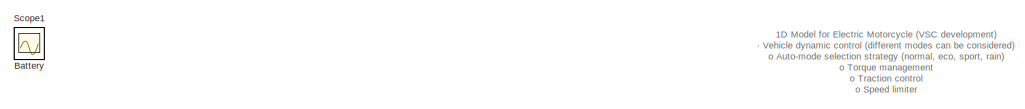
[diagram: root canvas - part 1/2, top left region]
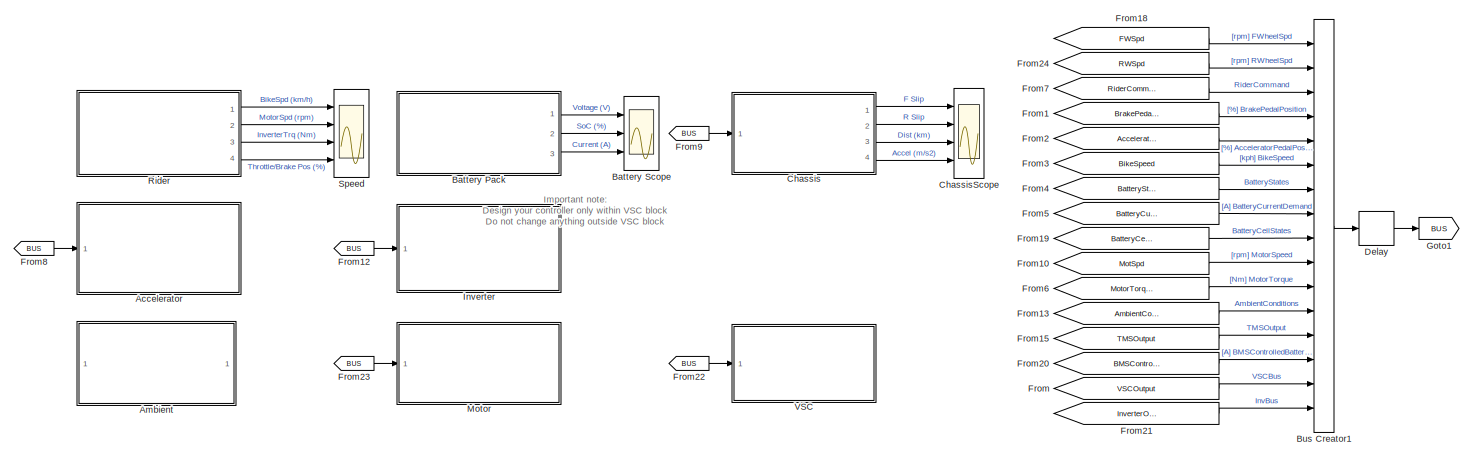
[diagram: root canvas - part 2/2, bottom center region]
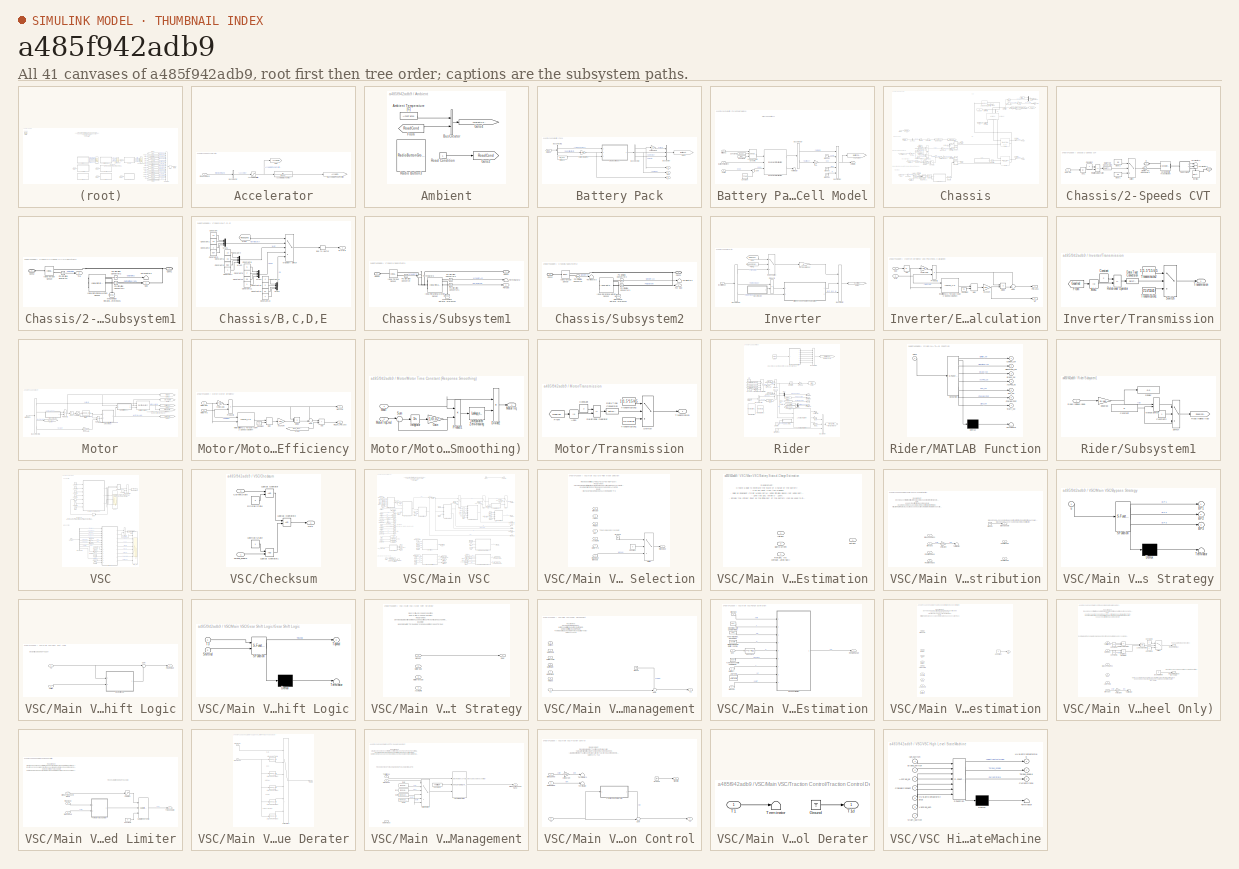
[diagram: thumbnail index - all 41 canvases of the model, root first then tree order]
MODEL slx_a485f942adb9
KIND model
CONFIG AbsTol = auto
CONFIG EnableMultiTasking = off
CONFIG FixedStep = 0.01
CONFIG MaxStep = auto
CONFIG MinStep = auto
CONFIG PreLoadFcn = load('ACS_1DModel23_Parameters_v2.mat');
CONFIG RelTol = 1e-3
CONFIG SampleTimeConstraint = Unconstrained
CONFIG SolverName = ode14x
CONFIG StartTime = 0.0
CONFIG StopTime = 1800
BLOCK [SubSystem] Accelerator
  NameLocation = top
  Ports = [1]
  RequestExecContextInheritance = off
BLOCK [TransferFcn] Accelerator/Accelerator Dynamics
  Denominator = [0.15 1]
BLOCK [Saturate] Accelerator/Accelerator Limitter
  LowerLimit = 0
  UpperLimit = 100
  ZeroCross = off
BLOCK [BusSelector] Accelerator/Bus Selector
  OutputSignals = RiderCmd.AccCmd
  Ports = [1, 1]
BLOCK [Goto] Accelerator/Goto
  GotoTag = AccelCmd
  TagVisibility = global
BLOCK [Inport] Accelerator/Rider Command
BLOCK [Goto] Accelerator/[%] Accelerator Pedal Position
  GotoTag = AcceleratorPedalPosition
  TagVisibility = global
BLOCK [SubSystem] Ambient
  NameLocation = top
  Ports = []
  RequestExecContextInheritance = off
BLOCK [Constant] Ambient/Ambient Temperature [C]
  Value = AmbTemp
BLOCK [BusCreator] Ambient/Bus Creator
  DisplayOption = bar
  InheritFromInputs = off
  Inputs = 2
  OutDataTypeStr = Bus: AmbCondBus
  Ports = [2, 1]
BLOCK [From] Ambient/From
  GotoTag = RoadCond
  TagVisibility = global
BLOCK [Goto] Ambient/Goto2
  GotoTag = RoadCond
  TagVisibility = global
BLOCK [Goto] Ambient/Goto4
  GotoTag = AmbientConditions
  TagVisibility = global
BLOCK [RadioButtonGroup] Ambient/Radio Button3
  ButtonGroupName = Road Cond
  LabelPosition = Hide
  SelectedLabel = Dry
BLOCK [Constant] Ambient/Road Condition
BLOCK [Scope] Battery
  Floating = off
  IOType = viewer
  NumInputPorts = 1
  Ports = []
  ScopeSpecificationString = Simulink.scopes.TimeScopeBlockCfg('CurrentConfiguration', extmgr.ConfigurationSet(extmgr.Configuration('Core','General UI',true),extmgr.Configuration('Core','Source UI',true),extmgr.Configuration('Sources','WiredSimulink',true,'DataLoggingVariableName','ScopeData2'),extmgr.Configuration('Visuals','Time Domain',true,'SerializedDisplays',{struct('MinYLimReal','98.43042','MaxYLimReal','100.1744','YLa...<+1419ch>
BLOCK [SubSystem] Battery Pack
  NameLocation = top
  Ports = [0, 3]
  RequestExecContextInheritance = off
BLOCK [BusCreator] Battery Pack/Bus Creator
  DisplayOption = bar
  InheritFromInputs = off
  Inputs = 3
  OutDataTypeStr = Bus: BattStateBus
  Ports = [3, 1]
BLOCK [BusSelector] Battery Pack/Bus Selector1
  OutputSignals = AmbCond.AmbientTemps,BMSCtrlBattCurr
  Ports = [1, 2]
BLOCK [BusSelector] Battery Pack/Bus Selector2
  OutputSignals = CellVolt,CellSOC,CellTemp
  Ports = [1, 3]
BLOCK [From] Battery Pack/From14
  GotoTag = BUS
  TagVisibility = global
BLOCK [Goto] Battery Pack/Goto1
  GotoTag = BatteryStates
  TagVisibility = global
BLOCK [Outport] Battery Pack/I
  Port = 3
BLOCK [Constant] Battery Pack/IntialSoC
  Value = Init_SoC
BLOCK [SubSystem] Battery Pack/Single Cell Model
  Ports = [3, 1]
  RequestExecContextInheritance = off
BLOCK [Inport] Battery Pack/Single Cell Model/BatteryCellCurrent
  Port = 2
BLOCK [BusCreator] Battery Pack/Single Cell Model/Bus Creator
  DisplayOption = bar
  InheritFromInputs = off
  Inputs = 5
  OutDataTypeStr = Bus: CellStateBus
  Ports = [5, 1]
BLOCK [BusSelector] Battery Pack/Single Cell Model/Bus Selector
  OutputSignals = BattVolt,BattSoc
  Ports = [1, 2]
BLOCK [Outport] Battery Pack/Single Cell Model/Cell State
  VectorParamsAs1DForOutWhenUnconnected = off
BLOCK [Constant] Battery Pack/Single Cell Model/Constant
  Value = 273.15
BLOCK [Constant] Battery Pack/Single Cell Model/Constant1
  Value = [0 100]
BLOCK [Constant] Battery Pack/Single Cell Model/Constant2
  Value = [0 5]
BLOCK [Reference] Battery Pack/Single Cell Model/Equivalent Circuit Battery  REF=autolibrcnetworksystem/Equivalent Circuit Battery
  Ports = [3, 2]
  SourceBlock = autolibrcnetworksystem/Equivalent Circuit Battery
  SourceProductBaseCode = PW
  SourceType = Equivalent Circuit Battery
BLOCK [Ground] Battery Pack/Single Cell Model/Ground
BLOCK [Ground] Battery Pack/Single Cell Model/Ground1
BLOCK [Ground] Battery Pack/Single Cell Model/Ground2
BLOCK [Inport] Battery Pack/Single Cell Model/Initial SoC
  Port = 3
BLOCK [Reference] Battery Pack/Single Cell Model/Lookup Table Dynamic  REF=simulink/Lookup
Tables/Lookup
Table
Dynamic
  Ports = [3, 1]
  SourceBlock = simulink/Lookup\nTables/Lookup\nTable\nDynamic
  SourceProductBaseCode = SL
  SourceType = Lookup Table Dynamic
BLOCK [Sum] Battery Pack/Single Cell Model/Sum
  Inputs = |++
  Ports = [2, 1]
BLOCK [Inport] Battery Pack/Single Cell Model/Temp
BLOCK [Terminator] Battery Pack/Single Cell Model/Terminator
BLOCK [Goto] Battery Pack/Single Cell Model/V, T, SoC, OCV
  GotoTag = BatteryCellStates
  TagVisibility = global
BLOCK [Gain] Battery Pack/Single Cell Model/to%
  Gain = 100
BLOCK [Outport] Battery Pack/SoC
  Port = 2
BLOCK [Outport] Battery Pack/V
BLOCK [Gain] Battery Pack/batt2cellCurrent
  Gain = 1/nP
BLOCK [Gain] Battery Pack/cell2batVolt
  Gain = nS
BLOCK [Scope] Battery Scope
  Floating = off
  NumInputPorts = 3
  Ports = [3]
  ScopeSpecificationString = Simulink.scopes.TimeScopeBlockCfg('CurrentConfiguration', extmgr.ConfigurationSet(extmgr.Configuration('Core','General UI',true),extmgr.Configuration('Core','Source UI',true),extmgr.Configuration('Sources','WiredSimulink',true,'DataLoggingVariableName','ScopeData1'),extmgr.Configuration('Visuals','Time Domain',true,'SerializedDisplays',{struct('MinYLimReal','3.95513','MaxYLimReal','4.22257','YLabe...<+2702ch>
BLOCK [BusCreator] Bus Creator1
  DisplayOption = bar
  InheritFromInputs = off
  Inputs = 16
  OutDataTypeStr = Bus: ModelBus
  Ports = [16, 1]
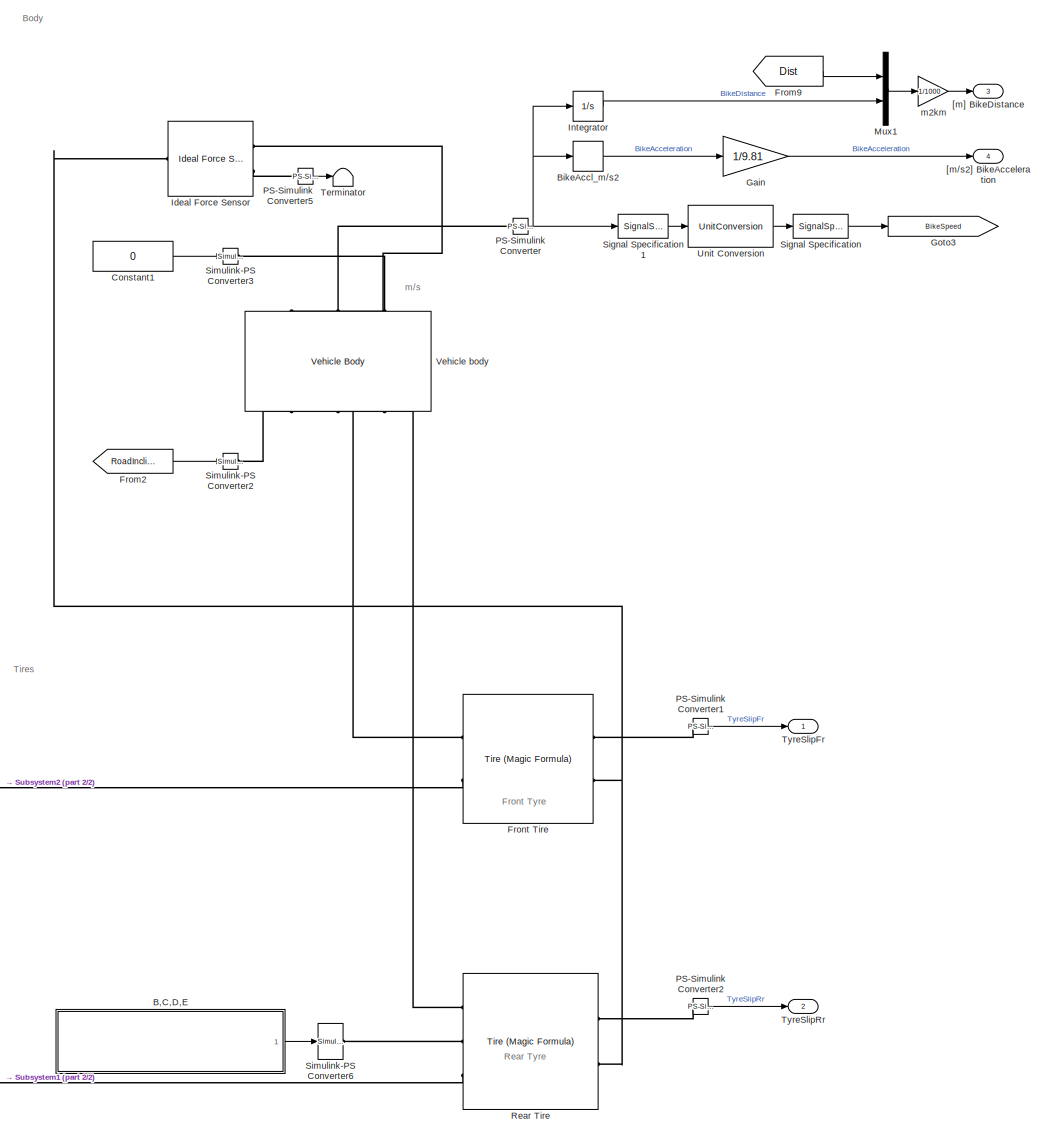
[diagram: Chassis - part 1/2, right side, full height]
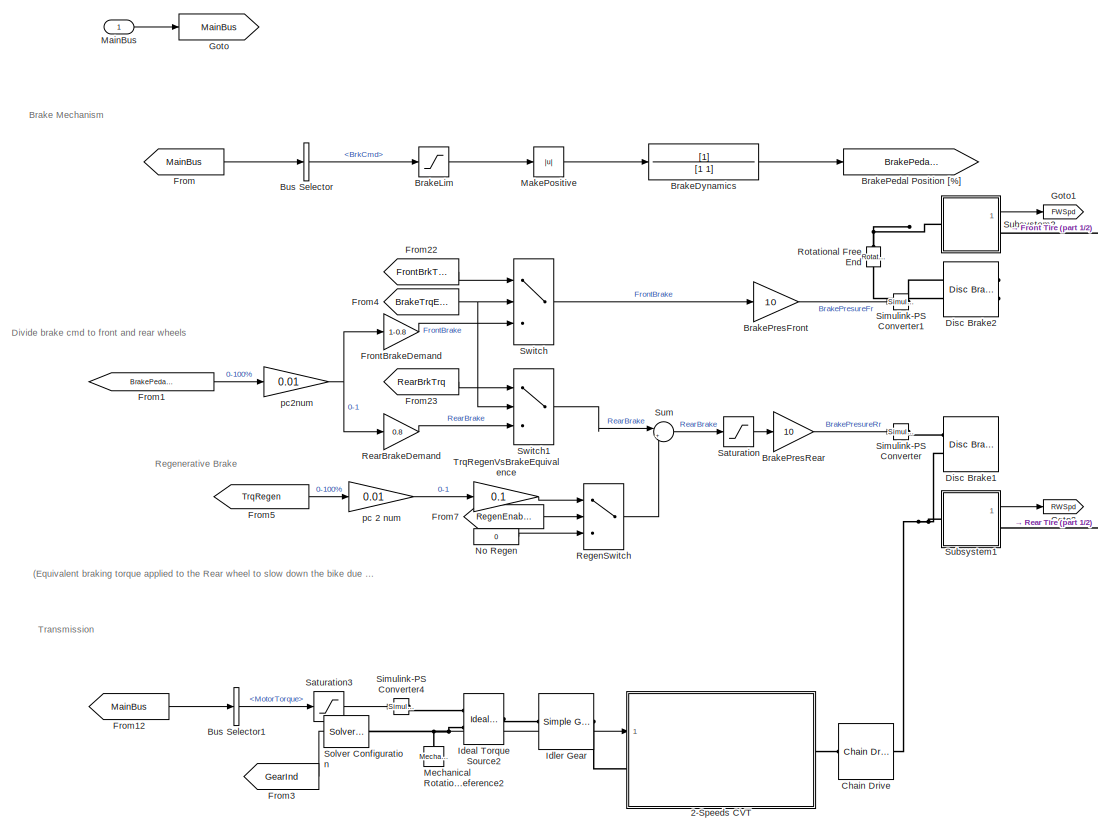
[diagram: Chassis - part 2/2, bottom left region]
BLOCK [SubSystem] Chassis
  NameLocation = top
  Ports = [1, 4]
  RequestExecContextInheritance = off
BLOCK [SubSystem] Chassis/2-Speeds CVT
  PortSchema = {"entries":[{"content":{"sides":[{"content":{"connectorIds":["LConn1","In1"]},"type":"ConnectorPlacement.EquallySpacedRectSide","uuid":"b79ba6b3-25f2-43ad-8d13-28516f3c2dbb"},{"content":{"connectorIds":["RConn1"],"side":"RIGHT"},"type":"ConnectorPlacement.EquallySpacedRectSide","uuid":"f2f7b57b-224a-4cc2-9c38-49f8210c3cf7"},{"content":{"connectorIds":[],"side":"TOP"},"type":"ConnectorPlacement.Equ...<+251ch>
  Ports = [1, 0, 0, 0, 0, 1, 1]
  RequestExecContextInheritance = off
BLOCK [Abs] Chassis/2-Speeds CVT/Abs1
  SaturateOnIntegerOverflow = off
BLOCK [Constant] Chassis/2-Speeds CVT/Constant
  Value = 2
BLOCK [DataTypeConversion] Chassis/2-Speeds CVT/Data Type Conversion
  RndMeth = Floor
  SaturateOnIntegerOverflow = off
BLOCK [Constant] Chassis/2-Speeds CVT/Gear1
  Value = 2.4
BLOCK [Constant] Chassis/2-Speeds CVT/Gear2
  Value = 1.5
BLOCK [Inport] Chassis/2-Speeds CVT/GearSel
BLOCK [Reference] Chassis/2-Speeds CVT/Inertia3  REF=fl_lib/Mechanical/Rotational Elements/Inertia
  Ports = [0, 0, 0, 0, 0, 1]
  SourceBlock = fl_lib/Mechanical/Rotational Elements/Inertia
  SourceProductBaseCode = SS
  SourceType = Inertia
BLOCK [PMIOPort] Chassis/2-Speeds CVT/R
  Side = Left
BLOCK [RelationalOperator] Chassis/2-Speeds CVT/Relational Operator
  InputSameDT = off
  Operator = ==
  OutDataTypeStr = boolean
  Ports = [2, 1]
  RndMeth = Simplest
BLOCK [PMIOPort] Chassis/2-Speeds CVT/S
  Port = 2
  Side = Right
BLOCK [Reference] Chassis/2-Speeds CVT/Simulink-PS Converter1  REF=nesl_utility/Simulink-PS
Converter
  Ports = [1, 0, 0, 0, 0, 0, 1]
  SourceBlock = nesl_utility/Simulink-PS\nConverter
  SourceProductBaseCode = PW,SS
  SourceType = Simulink-PS\nConverter
BLOCK [SubSystem] Chassis/2-Speeds CVT/Subsystem1
  Ports = [0, 2, 0, 0, 0, 1, 1]
  RequestExecContextInheritance = off
BLOCK [PMIOPort] Chassis/2-Speeds CVT/Subsystem1/Conn1
  Side = Right
BLOCK [PMIOPort] Chassis/2-Speeds CVT/Subsystem1/Conn2
  Port = 2
  Side = Left
BLOCK [Reference] Chassis/2-Speeds CVT/Subsystem1/Ideal Rotational Motion Sensor  REF=fl_lib/Mechanical/Mechanical Sensors/Ideal Rotational
Motion Sensor
  Ports = [0, 0, 0, 0, 0, 1, 3]
  SourceBlock = fl_lib/Mechanical/Mechanical Sensors/Ideal Rotational\nMotion Sensor
  SourceProductBaseCode = SS
  SourceType = Ideal Rotational\nMotion Sensor
BLOCK [Reference] Chassis/2-Speeds CVT/Subsystem1/Ideal Torque Sensor  REF=fl_lib/Mechanical/Mechanical Sensors/Ideal Torque Sensor
  Ports = [0, 0, 0, 0, 0, 1, 2]
  SourceBlock = fl_lib/Mechanical/Mechanical Sensors/Ideal Torque Sensor
  SourceProductBaseCode = SS
  SourceType = Ideal Torque Sensor
BLOCK [Reference] Chassis/2-Speeds CVT/Subsystem1/Mechanical Rotational Reference1  REF=fl_lib/Mechanical/Rotational Elements/Mechanical
Rotational Reference
  NameLocation = right
  Ports = [0, 0, 0, 0, 0, 1]
  SourceBlock = fl_lib/Mechanical/Rotational Elements/Mechanical\nRotational Reference
  SourceProductBaseCode = SS
  SourceType = Mechanical\nRotational Reference
BLOCK [Reference] Chassis/2-Speeds CVT/Subsystem1/PS-Simulink Converter  REF=nesl_utility/PS-Simulink
Converter
  Ports = [0, 1, 0, 0, 0, 1]
  SourceBlock = nesl_utility/PS-Simulink\nConverter
  SourceProductBaseCode = PW,SS
  SourceType = PS-Simulink\nConverter
BLOCK [Reference] Chassis/2-Speeds CVT/Subsystem1/PS-Simulink Converter1  REF=nesl_utility/PS-Simulink
Converter
  Ports = [0, 1, 0, 0, 0, 1]
  SourceBlock = nesl_utility/PS-Simulink\nConverter
  SourceProductBaseCode = PW,SS
  SourceType = PS-Simulink\nConverter
BLOCK [Reference] Chassis/2-Speeds CVT/Subsystem1/PS-Simulink Converter2  REF=nesl_utility/PS-Simulink
Converter
  Ports = [0, 1, 0, 0, 0, 1]
  SourceBlock = nesl_utility/PS-Simulink\nConverter
  SourceProductBaseCode = PW,SS
  SourceType = PS-Simulink\nConverter
BLOCK [Outport] Chassis/2-Speeds CVT/Subsystem1/Spd
BLOCK [Terminator] Chassis/2-Speeds CVT/Subsystem1/Terminator2
BLOCK [Outport] Chassis/2-Speeds CVT/Subsystem1/Trq
  Port = 2
BLOCK [Switch] Chassis/2-Speeds CVT/Switch
  Criteria = u2 > Threshold
  InputSameDT = off
  SaturateOnIntegerOverflow = off
BLOCK [Terminator] Chassis/2-Speeds CVT/Terminator3
BLOCK [Terminator] Chassis/2-Speeds CVT/Terminator4
BLOCK [Reference] Chassis/2-Speeds CVT/Variable Ratio Transmission  REF=sdl_lib/Couplings & Drives/Variable Ratio
Transmission
  Ports = [0, 0, 0, 0, 0, 2, 1]
  SourceBlock = sdl_lib/Couplings & Drives/Variable Ratio\nTransmission
  SourceProductBaseCode = LD
  SourceType = Variable Ratio\nTransmission
BLOCK [SubSystem] Chassis/B,C,D,E
  Ports = [0, 1]
  RequestExecContextInheritance = off
BLOCK [Outport] Chassis/B,C,D,E/B,C,D,E
BLOCK [BusToVector] Chassis/B,C,D,E/Bus to Vector
BLOCK [Constant] Chassis/B,C,D,E/Constant
  Value = 10
BLOCK [Constant] Chassis/B,C,D,E/Constant1
  Value = 1.9
BLOCK [Constant] Chassis/B,C,D,E/Constant10
  Value = 0.3
BLOCK [Constant] Chassis/B,C,D,E/Constant11
BLOCK [Constant] Chassis/B,C,D,E/Constant12
  Value = 0.1
BLOCK [Constant] Chassis/B,C,D,E/Constant13
BLOCK [Constant] Chassis/B,C,D,E/Constant14
  Value = 4
BLOCK [Constant] Chassis/B,C,D,E/Constant15
  Value = 2
BLOCK [Constant] Chassis/B,C,D,E/Constant2
BLOCK [Constant] Chassis/B,C,D,E/Constant3
  Value = 0.97
BLOCK [Constant] Chassis/B,C,D,E/Constant4
  Value = 12
BLOCK [Constant] Chassis/B,C,D,E/Constant5
  Value = 2.3
BLOCK [Constant] Chassis/B,C,D,E/Constant6
  Value = 0.82
BLOCK [Constant] Chassis/B,C,D,E/Constant7
BLOCK [Constant] Chassis/B,C,D,E/Constant8
  Value = 5
BLOCK [Constant] Chassis/B,C,D,E/Constant9
  Value = 2
BLOCK [From] Chassis/B,C,D,E/From
  GotoTag = RoadCond
  TagVisibility = global
BLOCK [MultiPortSwitch] Chassis/B,C,D,E/Multiport Switch
  InputSameDT = off
  Inputs = 4
  Ports = [5, 1]
  SaturateOnIntegerOverflow = off
BLOCK [Mux] Chassis/B,C,D,E/Mux1
  DisplayOption = bar
  Ports = [4, 1]
BLOCK [Mux] Chassis/B,C,D,E/Mux2
  DisplayOption = bar
  Ports = [4, 1]
BLOCK [Mux] Chassis/B,C,D,E/Mux3
  DisplayOption = bar
  Ports = [4, 1]
BLOCK [Mux] Chassis/B,C,D,E/Mux4
  DisplayOption = bar
  Ports = [4, 1]
BLOCK [Derivative] Chassis/BikeAccl_m//s2
BLOCK [TransferFcn] Chassis/BrakeDynamics
  Denominator = [1 1]
BLOCK [Saturate] Chassis/BrakeLim
  LowerLimit = -100
  UpperLimit = 0
BLOCK [Goto] Chassis/BrakePedal Position [%]
  GotoTag = BrakePedalPosition
  TagVisibility = global
BLOCK [Gain] Chassis/BrakePresFront
  Gain = 10
BLOCK [Gain] Chassis/BrakePresRear
  Gain = 10
BLOCK [BusSelector] Chassis/Bus Selector
  OutputSignals = RiderCmd.BrkCmd
  Ports = [1, 1]
BLOCK [BusSelector] Chassis/Bus Selector1
  OutputSignals = MotorTorque
  Ports = [1, 1]
BLOCK [Reference] Chassis/Chain Drive  REF=sdl_lib/Couplings & Drives/Chain Drive
  Ports = [0, 0, 0, 0, 0, 1, 1]
  SourceBlock = sdl_lib/Couplings & Drives/Chain Drive
  SourceProductBaseCode = LD
  SourceType = Chain Drive
BLOCK [Constant] Chassis/Constant1
  Value = 0
BLOCK [Reference] Chassis/Disc Brake1  REF=sdl_lib/Brakes & Detents/Rotational/Disc Brake
  Ports = [0, 0, 0, 0, 0, 2]
  SourceBlock = sdl_lib/Brakes & Detents/Rotational/Disc Brake
  SourceProductBaseCode = LD
  SourceType = Disc Brake
BLOCK [Reference] Chassis/Disc Brake2  REF=sdl_lib/Brakes & Detents/Rotational/Disc Brake
  Ports = [0, 0, 0, 0, 0, 2]
  SourceBlock = sdl_lib/Brakes & Detents/Rotational/Disc Brake
  SourceProductBaseCode = LD
  SourceType = Disc Brake
BLOCK [From] Chassis/From
  GotoTag = MainBus
BLOCK [From] Chassis/From1
  GotoTag = BrakePedalPosition
  TagVisibility = global
BLOCK [From] Chassis/From12
  GotoTag = MainBus
BLOCK [From] Chassis/From2
  GotoTag = RoadInclined
  TagVisibility = global
BLOCK [From] Chassis/From22
  GotoTag = FrontBrkTrq
  TagVisibility = global
BLOCK [From] Chassis/From23
  GotoTag = RearBrkTrq
  TagVisibility = global
BLOCK [From] Chassis/From3
  GotoTag = GearInd
  TagVisibility = global
BLOCK [From] Chassis/From4
  GotoTag = BrakeTrqEnable
  TagVisibility = global
BLOCK [From] Chassis/From5
  GotoTag = TrqRegen
  TagVisibility = global
BLOCK [From] Chassis/From7
  GotoTag = RegenEnable
  TagVisibility = global
BLOCK [From] Chassis/From9
  GotoTag = Dist
  TagVisibility = global
BLOCK [Reference] Chassis/Front Tire  REF=sdl_lib/Tires & Vehicles/Tire (Magic Formula)
  NameLocation = top
  Ports = [0, 0, 0, 0, 0, 2, 2]
  SourceBlock = sdl_lib/Tires & Vehicles/Tire (Magic Formula)
  SourceProductBaseCode = LD
  SourceType = Tire (Magic Formula)
BLOCK [Gain] Chassis/FrontBrakeDemand
  Gain = 1-0.8
BLOCK [Gain] Chassis/Gain
  Gain = 1/9.81
BLOCK [Goto] Chassis/Goto
  GotoTag = MainBus
BLOCK [Goto] Chassis/Goto1
  GotoTag = FWSpd
  TagVisibility = global
BLOCK [Goto] Chassis/Goto2
  GotoTag = RWSpd
  TagVisibility = global
BLOCK [Goto] Chassis/Goto3
  GotoTag = BikeSpeed
  TagVisibility = global
BLOCK [Reference] Chassis/Ideal Force Sensor  REF=fl_lib/Mechanical/Mechanical Sensors/Ideal Force Sensor
  Ports = [0, 0, 0, 0, 0, 1, 2]
  SourceBlock = fl_lib/Mechanical/Mechanical Sensors/Ideal Force Sensor
  SourceProductBaseCode = SS
  SourceType = Ideal Force Sensor
BLOCK [Reference] Chassis/Ideal Torque Source2  REF=fl_lib/Mechanical/Mechanical Sources/Ideal Torque Source
  Ports = [0, 0, 0, 0, 0, 1, 2]
  SourceBlock = fl_lib/Mechanical/Mechanical Sources/Ideal Torque Source
  SourceProductBaseCode = SS
  SourceType = Ideal Torque Source
BLOCK [Reference] Chassis/Idler Gear  REF=sdl_lib/Gears/Simple Gear
  Ports = [0, 0, 0, 0, 0, 1, 1]
  SourceBlock = sdl_lib/Gears/Simple Gear
  SourceProductBaseCode = LD
  SourceType = Simple Gear
BLOCK [Integrator] Chassis/Integrator
  Ports = [1, 1]
BLOCK [Inport] Chassis/MainBus
BLOCK [Abs] Chassis/MakePositive
  SaturateOnIntegerOverflow = off
BLOCK [Reference] Chassis/Mechanical Rotational Reference2  REF=fl_lib/Mechanical/Rotational Elements/Mechanical
Rotational Reference
  NameLocation = right
  Ports = [0, 0, 0, 0, 0, 1]
  SourceBlock = fl_lib/Mechanical/Rotational Elements/Mechanical\nRotational Reference
  SourceProductBaseCode = SS
  SourceType = Mechanical\nRotational Reference
BLOCK [Mux] Chassis/Mux1
  DisplayOption = bar
  Inputs = 2
  Ports = [2, 1]
BLOCK [Constant] Chassis/No Regen
  Value = 0
BLOCK [Reference] Chassis/PS-Simulink Converter  REF=nesl_utility/PS-Simulink
Converter
  Ports = [0, 1, 0, 0, 0, 1]
  SourceBlock = nesl_utility/PS-Simulink\nConverter
  SourceProductBaseCode = PW,SS
  SourceType = PS-Simulink\nConverter
BLOCK [Reference] Chassis/PS-Simulink Converter1  REF=nesl_utility/PS-Simulink
Converter
  Ports = [0, 1, 0, 0, 0, 1]
  SourceBlock = nesl_utility/PS-Simulink\nConverter
  SourceProductBaseCode = PW,SS
  SourceType = PS-Simulink\nConverter
BLOCK [Reference] Chassis/PS-Simulink Converter2  REF=nesl_utility/PS-Simulink
Converter
  Ports = [0, 1, 0, 0, 0, 1]
  SourceBlock = nesl_utility/PS-Simulink\nConverter
  SourceProductBaseCode = PW,SS
  SourceType = PS-Simulink\nConverter
BLOCK [Reference] Chassis/PS-Simulink Converter5  REF=nesl_utility/PS-Simulink
Converter
  Ports = [0, 1, 0, 0, 0, 1]
  SourceBlock = nesl_utility/PS-Simulink\nConverter
  SourceProductBaseCode = PW,SS
  SourceType = PS-Simulink\nConverter
BLOCK [Reference] Chassis/Rear Tire  REF=sdl_lib/Tires & Vehicles/Tire (Magic Formula)
  NameLocation = top
  Ports = [0, 0, 0, 0, 0, 3, 2]
  SourceBlock = sdl_lib/Tires & Vehicles/Tire (Magic Formula)
  SourceProductBaseCode = LD
  SourceType = Tire (Magic Formula)
BLOCK [Gain] Chassis/RearBrakeDemand
  Gain = 0.8
BLOCK [Switch] Chassis/RegenSwitch
  Criteria = u2 > Threshold
  InputSameDT = off
  SaturateOnIntegerOverflow = off
BLOCK [Reference] Chassis/Rotational Free End  REF=fl_lib/Mechanical/Rotational Elements/Rotational Free End
  NameLocation = right
  Ports = [0, 0, 0, 0, 0, 1]
  SourceBlock = fl_lib/Mechanical/Rotational Elements/Rotational Free End
  SourceProductBaseCode = SS
  SourceType = Rotational Free End
BLOCK [Saturate] Chassis/Saturation
  LowerLimit = 0
  UpperLimit = 1
BLOCK [Saturate] Chassis/Saturation3
  LowerLimit = -15
  UpperLimit = TMaxMotor
BLOCK [SignalSpecification] Chassis/Signal Specification
  Unit = km/hr
BLOCK [SignalSpecification] Chassis/Signal Specification1
  Unit = m/s
BLOCK [Reference] Chassis/Simulink-PS Converter  REF=nesl_utility/Simulink-PS
Converter
  Ports = [1, 0, 0, 0, 0, 0, 1]
  SourceBlock = nesl_utility/Simulink-PS\nConverter
  SourceProductBaseCode = PW,SS
  SourceType = Simulink-PS\nConverter
BLOCK [Reference] Chassis/Simulink-PS Converter1  REF=nesl_utility/Simulink-PS
Converter
  Ports = [1, 0, 0, 0, 0, 0, 1]
  SourceBlock = nesl_utility/Simulink-PS\nConverter
  SourceProductBaseCode = PW,SS
  SourceType = Simulink-PS\nConverter
BLOCK [Reference] Chassis/Simulink-PS Converter2  REF=nesl_utility/Simulink-PS
Converter
  Ports = [1, 0, 0, 0, 0, 0, 1]
  SourceBlock = nesl_utility/Simulink-PS\nConverter
  SourceProductBaseCode = PW,SS
  SourceType = Simulink-PS\nConverter
BLOCK [Reference] Chassis/Simulink-PS Converter3  REF=nesl_utility/Simulink-PS
Converter
  Ports = [1, 0, 0, 0, 0, 0, 1]
  SourceBlock = nesl_utility/Simulink-PS\nConverter
  SourceProductBaseCode = PW,SS
  SourceType = Simulink-PS\nConverter
BLOCK [Reference] Chassis/Simulink-PS Converter4  REF=nesl_utility/Simulink-PS
Converter
  Ports = [1, 0, 0, 0, 0, 0, 1]
  SourceBlock = nesl_utility/Simulink-PS\nConverter
  SourceProductBaseCode = PW,SS
  SourceType = Simulink-PS\nConverter
BLOCK [Reference] Chassis/Simulink-PS Converter6  REF=nesl_utility/Simulink-PS
Converter
  Ports = [1, 0, 0, 0, 0, 0, 1]
  SourceBlock = nesl_utility/Simulink-PS\nConverter
  SourceProductBaseCode = PW,SS
  SourceType = Simulink-PS\nConverter
BLOCK [Reference] Chassis/Solver Configuration  REF=nesl_utility/Solver
Configuration
  Ports = [0, 0, 0, 0, 0, 0, 1]
  SourceBlock = nesl_utility/Solver\nConfiguration
  SourceProductBaseCode = PW,SS
  SourceType = Solver\nConfiguration
BLOCK [SubSystem] Chassis/Subsystem1
  Ports = [0, 1, 0, 0, 0, 1, 1]
  RequestExecContextInheritance = off
BLOCK [PMIOPort] Chassis/Subsystem1/Conn1
  Side = Right
BLOCK [PMIOPort] Chassis/Subsystem1/Conn2
  Port = 2
  Side = Left
BLOCK [Reference] Chassis/Subsystem1/Ideal Rotational Motion Sensor  REF=fl_lib/Mechanical/Mechanical Sensors/Ideal Rotational
Motion Sensor
  Ports = [0, 0, 0, 0, 0, 1, 3]
  SourceBlock = fl_lib/Mechanical/Mechanical Sensors/Ideal Rotational\nMotion Sensor
  SourceProductBaseCode = SS
  SourceType = Ideal Rotational\nMotion Sensor
BLOCK [Reference] Chassis/Subsystem1/Ideal Torque Sensor  REF=fl_lib/Mechanical/Mechanical Sensors/Ideal Torque Sensor
  Ports = [0, 0, 0, 0, 0, 1, 2]
  SourceBlock = fl_lib/Mechanical/Mechanical Sensors/Ideal Torque Sensor
  SourceProductBaseCode = SS
  SourceType = Ideal Torque Sensor
BLOCK [Reference] Chassis/Subsystem1/Mechanical Rotational Reference1  REF=fl_lib/Mechanical/Rotational Elements/Mechanical
Rotational Reference
  NameLocation = right
  Ports = [0, 0, 0, 0, 0, 1]
  SourceBlock = fl_lib/Mechanical/Rotational Elements/Mechanical\nRotational Reference
  SourceProductBaseCode = SS
  SourceType = Mechanical\nRotational Reference
BLOCK [Reference] Chassis/Subsystem1/PS-Simulink Converter  REF=nesl_utility/PS-Simulink
Converter
  Ports = [0, 1, 0, 0, 0, 1]
  SourceBlock = nesl_utility/PS-Simulink\nConverter
  SourceProductBaseCode = PW,SS
  SourceType = PS-Simulink\nConverter
BLOCK [Reference] Chassis/Subsystem1/PS-Simulink Converter1  REF=nesl_utility/PS-Simulink
Converter
  Ports = [0, 1, 0, 0, 0, 1]
  SourceBlock = nesl_utility/PS-Simulink\nConverter
  SourceProductBaseCode = PW,SS
  SourceType = PS-Simulink\nConverter
BLOCK [Reference] Chassis/Subsystem1/PS-Simulink Converter2  REF=nesl_utility/PS-Simulink
Converter
  Ports = [0, 1, 0, 0, 0, 1]
  SourceBlock = nesl_utility/PS-Simulink\nConverter
  SourceProductBaseCode = PW,SS
  SourceType = PS-Simulink\nConverter
BLOCK [Outport] Chassis/Subsystem1/RWSpd
BLOCK [Terminator] Chassis/Subsystem1/Terminator2
BLOCK [Terminator] Chassis/Subsystem1/Terminator3
BLOCK [SubSystem] Chassis/Subsystem2
  Ports = [0, 1, 0, 0, 0, 1, 1]
  RequestExecContextInheritance = off
BLOCK [PMIOPort] Chassis/Subsystem2/Conn1
  Side = Right
BLOCK [PMIOPort] Chassis/Subsystem2/Conn2
  Port = 2
  Side = Left
BLOCK [Outport] Chassis/Subsystem2/FW Spd
BLOCK [Reference] Chassis/Subsystem2/Ideal Rotational Motion Sensor  REF=fl_lib/Mechanical/Mechanical Sensors/Ideal Rotational
Motion Sensor
  Ports = [0, 0, 0, 0, 0, 1, 3]
  SourceBlock = fl_lib/Mechanical/Mechanical Sensors/Ideal Rotational\nMotion Sensor
  SourceProductBaseCode = SS
  SourceType = Ideal Rotational\nMotion Sensor
BLOCK [Reference] Chassis/Subsystem2/Ideal Torque Sensor  REF=fl_lib/Mechanical/Mechanical Sensors/Ideal Torque Sensor
  Ports = [0, 0, 0, 0, 0, 1, 2]
  SourceBlock = fl_lib/Mechanical/Mechanical Sensors/Ideal Torque Sensor
  SourceProductBaseCode = SS
  SourceType = Ideal Torque Sensor
BLOCK [Reference] Chassis/Subsystem2/Mechanical Rotational Reference1  REF=fl_lib/Mechanical/Rotational Elements/Mechanical
Rotational Reference
  NameLocation = right
  Ports = [0, 0, 0, 0, 0, 1]
  SourceBlock = fl_lib/Mechanical/Rotational Elements/Mechanical\nRotational Reference
  SourceProductBaseCode = SS
  SourceType = Mechanical\nRotational Reference
BLOCK [Reference] Chassis/Subsystem2/PS-Simulink Converter  REF=nesl_utility/PS-Simulink
Converter
  Ports = [0, 1, 0, 0, 0, 1]
  SourceBlock = nesl_utility/PS-Simulink\nConverter
  SourceProductBaseCode = PW,SS
  SourceType = PS-Simulink\nConverter
BLOCK [Reference] Chassis/Subsystem2/PS-Simulink Converter1  REF=nesl_utility/PS-Simulink
Converter
  Ports = [0, 1, 0, 0, 0, 1]
  SourceBlock = nesl_utility/PS-Simulink\nConverter
  SourceProductBaseCode = PW,SS
  SourceType = PS-Simulink\nConverter
BLOCK [Reference] Chassis/Subsystem2/PS-Simulink Converter2  REF=nesl_utility/PS-Simulink
Converter
  Ports = [0, 1, 0, 0, 0, 1]
  SourceBlock = nesl_utility/PS-Simulink\nConverter
  SourceProductBaseCode = PW,SS
  SourceType = PS-Simulink\nConverter
BLOCK [Terminator] Chassis/Subsystem2/Terminator2
BLOCK [Terminator] Chassis/Subsystem2/Terminator3
BLOCK [Sum] Chassis/Sum
  Inputs = |++
  Ports = [2, 1]
BLOCK [Switch] Chassis/Switch
  Criteria = u2 > Threshold
  InputSameDT = off
  SaturateOnIntegerOverflow = off
BLOCK [Switch] Chassis/Switch1
  Criteria = u2 > Threshold
  InputSameDT = off
  SaturateOnIntegerOverflow = off
BLOCK [Terminator] Chassis/Terminator
BLOCK [Gain] Chassis/TrqRegenVsBrakeEquivalence
  Gain = 0.1
  NameLocation = top
BLOCK [Outport] Chassis/TyreSlipFr
BLOCK [Outport] Chassis/TyreSlipRr
  Port = 2
BLOCK [UnitConversion] Chassis/Unit Conversion
BLOCK [Reference] Chassis/Vehicle body  REF=sdl_lib/Tires & Vehicles/Vehicle Body
  NameLocation = left
  Ports = [0, 0, 0, 0, 0, 3, 3]
  SourceBlock = sdl_lib/Tires & Vehicles/Vehicle Body
  SourceProductBaseCode = LD
  SourceType = Vehicle Body
BLOCK [Outport] Chassis/[m//s2] BikeAcceleration
  Port = 4
BLOCK [Outport] Chassis/[m] BikeDistance
  Port = 3
BLOCK [Gain] Chassis/m2km
  Gain = 1/1000
BLOCK [Gain] Chassis/pc 2 num
  Gain = 0.01
  NameLocation = top
BLOCK [Gain] Chassis/pc2num
  Gain = 0.01
BLOCK [Scope] ChassisScope
  Floating = off
  NumInputPorts = 4
  Ports = [4]
  ScopeSpecificationString = Simulink.scopes.TimeScopeBlockCfg('CurrentConfiguration', extmgr.ConfigurationSet(extmgr.Configuration('Core','General UI',true),extmgr.Configuration('Core','Source UI',true),extmgr.Configuration('Sources','WiredSimulink',true,'DataLoggingSaveFormat','Array','DataLoggingDecimation','1','DataLoggingVariableName','ScopeData1'),extmgr.Configuration('Visuals','Time Domain',true,'SerializedDisplays',{s...<+3583ch>
BLOCK [Delay] Delay
  DelayLength = 1
  InputPortMap = u0
  Ports = [1, 1]
BLOCK [From] From
  GotoTag = VSCOutput
  TagVisibility = global
BLOCK [From] From1
  GotoTag = BrakePedalPosition
  TagVisibility = global
BLOCK [From] From10
  GotoTag = MotSpd
  TagVisibility = global
BLOCK [From] From12
  GotoTag = BUS
  TagVisibility = global
BLOCK [From] From13
  GotoTag = AmbientConditions
  TagVisibility = global
BLOCK [From] From15
  GotoTag = TMSOutput
BLOCK [From] From18
  GotoTag = FWSpd
  TagVisibility = global
BLOCK [From] From19
  GotoTag = BatteryCellStates
  TagVisibility = global
BLOCK [From] From2
  GotoTag = AcceleratorPedalPosition
  TagVisibility = global
BLOCK [From] From20
  GotoTag = BMSControlledBatteryCurent
  TagVisibility = global
BLOCK [From] From21
  GotoTag = InverterOutput
  TagVisibility = global
BLOCK [From] From22
  GotoTag = BUS
  TagVisibility = global
BLOCK [From] From23
  GotoTag = BUS
  TagVisibility = global
BLOCK [From] From24
  GotoTag = RWSpd
  TagVisibility = global
BLOCK [From] From3
  GotoTag = BikeSpeed
  TagVisibility = global
BLOCK [From] From4
  GotoTag = BatteryStates
  TagVisibility = global
BLOCK [From] From5
  GotoTag = BatteryCurrentDemand
  TagVisibility = global
BLOCK [From] From6
  GotoTag = MotorTorque
  TagVisibility = global
BLOCK [From] From7
  GotoTag = RiderCommand
  TagVisibility = global
BLOCK [From] From8
  GotoTag = BUS
  TagVisibility = global
BLOCK [From] From9
  GotoTag = BUS
  TagVisibility = global
BLOCK [Goto] Goto1
  GotoTag = BUS
  TagVisibility = global
BLOCK [SubSystem] Inverter
  NameLocation = top
  Ports = [1]
  RequestExecContextInheritance = off
BLOCK [BusCreator] Inverter/Bus Creator
  DisplayOption = bar
  InheritFromInputs = on
  Inputs = 3
  OutDataTypeStr = Bus: INVBus
  Ports = [3, 1]
BLOCK [BusSelector] Inverter/Bus Selector
  OutputSignals = VSCBus.TrqFCmd,RWheelSpd,MotorTorque
  Ports = [1, 3]
BLOCK [SubSystem] Inverter/Efficiency and Powerloss Calculation
  Ports = [2, 2]
  RequestExecContextInheritance = off
BLOCK [Abs] Inverter/Efficiency and Powerloss Calculation/Abs
  SaturateOnIntegerOverflow = off
BLOCK [Constant] Inverter/Efficiency and Powerloss Calculation/Constant
  Value = 70
BLOCK [Product] Inverter/Efficiency and Powerloss Calculation/Divide
  Inputs = */
  Ports = [2, 1]
BLOCK [Lookup_n-D] Inverter/Efficiency and Powerloss Calculation/Inv Efficiency 1-Torque (row #) 2-Speed (column #)
  BreakpointsForDimension1 = [-TMaxMotor TMaxMotor]
  BreakpointsForDimension2 = [0 7000]
  ExtrapMethod = Cubic spline
  InputPortMap = u0,u1
  InternalRulePriority = Speed
  InterpMethod = Cubic spline
  Ports = [2, 1]
  RndMeth = Simplest
  Table = [0.8 0.9; 0.8 0.9]*100
BLOCK [MinMax] Inverter/Efficiency and Powerloss Calculation/Max
  Function = max
  Inputs = 2
  Ports = [2, 1]
BLOCK [Product] Inverter/Efficiency and Powerloss Calculation/Product1
  Ports = [2, 1]
BLOCK [Outport] Inverter/Efficiency and Powerloss Calculation/PwrLoss
  Port = 2
  VectorParamsAs1DForOutWhenUnconnected = off
BLOCK [Inport] Inverter/Efficiency and Powerloss Calculation/Spd
BLOCK [Sum] Inverter/Efficiency and Powerloss Calculation/Sum
  Inputs = -+|
  Ports = [2, 1]
BLOCK [Inport] Inverter/Efficiency and Powerloss Calculation/Trq
  Port = 2
BLOCK [Outport] Inverter/Efficiency and Powerloss Calculation/eff
  VectorParamsAs1DForOutWhenUnconnected = off
BLOCK [Gain] Inverter/Efficiency and Powerloss Calculation/pc2num
  Gain = 0.01
BLOCK [Gain] Inverter/Efficiency and Powerloss Calculation/rpm2rad//s
  Gain = (2*pi)/60
BLOCK [From] Inverter/From
  GotoTag = TrqRegen
  TagVisibility = global
BLOCK [From] Inverter/From1
  GotoTag = RegenEnable
  TagVisibility = global
BLOCK [Goto] Inverter/Goto2
  GotoTag = InverterOutput
  TagVisibility = global
BLOCK [Gain] Inverter/Inv Transfer Func
BLOCK [Inport] Inverter/InverterInput
BLOCK [Product] Inverter/Product1
  Ports = [2, 1]
BLOCK [Switch] Inverter/RegenSwitch
  Criteria = u2 > Threshold
  InputSameDT = off
  SaturateOnIntegerOverflow = off
BLOCK [SubSystem] Inverter/Transmission
  Ports = [0, 1]
  RequestExecContextInheritance = off
BLOCK [Abs] Inverter/Transmission/Abs1
  SaturateOnIntegerOverflow = off
BLOCK [Constant] Inverter/Transmission/Constant
  Value = 2
BLOCK [DataTypeConversion] Inverter/Transmission/Data Type Conversion
  RndMeth = Floor
  SaturateOnIntegerOverflow = off
BLOCK [From] Inverter/Transmission/From
  GotoTag = GearInd
  TagVisibility = global
BLOCK [RelationalOperator] Inverter/Transmission/Relational Operator
  InputSameDT = off
  Operator = ==
  OutDataTypeStr = boolean
  Ports = [2, 1]
  RndMeth = Simplest
BLOCK [Switch] Inverter/Transmission/Switch
  Criteria = u2 > Threshold
  InputSameDT = off
  SaturateOnIntegerOverflow = off
BLOCK [Outport] Inverter/Transmission/Transmission
BLOCK [Constant] Inverter/Transmission/Transmission1
  Value = 1*2.4*15/45
BLOCK [Constant] Inverter/Transmission/Transmission2
  Value = 1*1.5*15/45
BLOCK [SubSystem] Motor
  NameLocation = top
  Ports = [1]
  RequestExecContextInheritance = off
BLOCK [Abs] Motor/Abs2
  SaturateOnIntegerOverflow = off
BLOCK [Reference] Motor/Battery Current  REF=autolibmappedmotorcommon/Electrical Current
  Ports = [3, 1]
  SourceBlock = autolibmappedmotorcommon/Electrical Current
  SourceProductBaseCode = PW,DR,MT,UV,VE
  SourceType = SubSystem
BLOCK [BusSelector] Motor/Bus Selector1
  OutputSignals = BatteryStates.BattVolt,RWheelSpd,InvBus.InvPlossW,InvBus.InvOut
  Ports = [1, 4]
BLOCK [Goto] Motor/Goto
  GotoTag = MechMotorP
  TagVisibility = global
BLOCK [Goto] Motor/Goto1
  GotoTag = BatteryCurrentDemand
  TagVisibility = global
BLOCK [Goto] Motor/Goto2
  GotoTag = MotorTorque
  TagVisibility = global
BLOCK [Goto] Motor/Goto3
  GotoTag = MotSpd
  TagVisibility = global
BLOCK [Goto] Motor/Goto4
  GotoTag = InvP_loss_W
  TagVisibility = global
BLOCK [Goto] Motor/Goto5
  GotoTag = BMSControlledBatteryCurent
  TagVisibility = global
BLOCK [Inport] Motor/MainBus
BLOCK [SubSystem] Motor/Motor Efficiency
  Ports = [2, 2]
  RequestExecContextInheritance = off
BLOCK [Sum] Motor/Motor Efficiency/Add
  IconShape = rectangular
  Ports = [2, 1]
BLOCK [Constant] Motor/Motor Efficiency/Constant
  Value = 70
BLOCK [Product] Motor/Motor Efficiency/Divide
  Inputs = */
  Ports = [2, 1]
BLOCK [From] Motor/Motor Efficiency/From
  GotoTag = InvP_loss_W
  TagVisibility = global
BLOCK [MinMax] Motor/Motor Efficiency/Max
  Function = max
  Inputs = 2
  Ports = [2, 1]
BLOCK [Outport] Motor/Motor Efficiency/MechPwr
  VectorParamsAs1DForOutWhenUnconnected = off
BLOCK [Outport] Motor/Motor Efficiency/Mot_Inv_PwrLoss
  Port = 2
  VectorParamsAs1DForOutWhenUnconnected = off
BLOCK [Lookup_n-D] Motor/Motor Efficiency/Motor Efficiency 1-Torque (row #) 2-Speed (column #)
  BreakpointsForDimension1 = [-TMaxMotor TMaxMotor]
  BreakpointsForDimension2 = [-7000 7000]
  ExtrapMethod = Cubic spline
  InputPortMap = u0,u1
  InternalRulePriority = Speed
  InterpMethod = Cubic spline
  Ports = [2, 1]
  RndMeth = Simplest
  Table = [90 95; 90 95]
BLOCK [Inport] Motor/Motor Efficiency/MotorSpd
BLOCK [Inport] Motor/Motor Efficiency/MotorTrq
  Port = 2
BLOCK [Product] Motor/Motor Efficiency/Product1
  Ports = [2, 1]
BLOCK [Sum] Motor/Motor Efficiency/Sum
  Inputs = -+|
  Ports = [2, 1]
BLOCK [Gain] Motor/Motor Efficiency/pc2num
  Gain = 0.01
BLOCK [Gain] Motor/Motor Efficiency/rpm2rad//s
  Gain = (2*pi)/60
BLOCK [SubSystem] Motor/Motor Time Constant (Response Smoothing)
  Ports = [2, 1]
  RequestExecContextInheritance = off
BLOCK [Product] Motor/Motor Time Constant (Response Smoothing)/Divide2
  Ports = [2, 1]
BLOCK [Gain] Motor/Motor Time Constant (Response Smoothing)/Gain
  Gain = 1/0.02
BLOCK [Integrator] Motor/Motor Time Constant (Response Smoothing)/Integrator
  Ports = [1, 1]
BLOCK [Lookup_n-D] Motor/Motor Time Constant (Response Smoothing)/Interpolated Zero-crossing
  BreakpointsForDimension1 = [-1 1]
  ExtrapMethod = Clip
  InputPortMap = u0
  InternalRulePriority = Speed
  NumberOfTableDimensions = 1
  Ports = [1, 1]
  RndMeth = Simplest
  Table = [-1 1]
BLOCK [Inport] Motor/Motor Time Constant (Response Smoothing)/MaxT
BLOCK [Outport] Motor/Motor Time Constant (Response Smoothing)/MotorTrq
  InitialOutput = 0
  VectorParamsAs1DForOutWhenUnconnected = off
BLOCK [Inport] Motor/Motor Time Constant (Response Smoothing)/MotorTrqCmd
  Port = 2
BLOCK [Product] Motor/Motor Time Constant (Response Smoothing)/Product1
  Inputs = /*
  Ports = [2, 1]
BLOCK [Sum] Motor/Motor Time Constant (Response Smoothing)/Sum
  Inputs = |+-
  Ports = [2, 1]
BLOCK [Lookup_n-D] Motor/Peak Motor Torque [Nm]
  BreakpointsForDimension1 = [0 2000 5000 7000]
  ExtrapMethod = Clip
  InputPortMap = u0
  InternalRulePriority = Speed
  NumberOfTableDimensions = 1
  Ports = [1, 1]
  RndMeth = Simplest
  Table = [120 115 95 70]
BLOCK [Product] Motor/Product
  Ports = [2, 1]
BLOCK [Product] Motor/Product1
  Ports = [2, 1]
BLOCK [Saturate] Motor/Saturation2
  Commented = through
  LowerLimit = -7000
  UpperLimit = 7000
BLOCK [SubSystem] Motor/Transmission
  Ports = [0, 1]
  RequestExecContextInheritance = off
BLOCK [Abs] Motor/Transmission/Abs1
  SaturateOnIntegerOverflow = off
BLOCK [Constant] Motor/Transmission/Constant
  Value = 2
BLOCK [DataTypeConversion] Motor/Transmission/Data Type Conversion
  RndMeth = Floor
  SaturateOnIntegerOverflow = off
BLOCK [From] Motor/Transmission/From
  GotoTag = GearInd
  TagVisibility = global
BLOCK [RelationalOperator] Motor/Transmission/Relational Operator
  InputSameDT = off
  Operator = ==
  OutDataTypeStr = boolean
  Ports = [2, 1]
  RndMeth = Simplest
BLOCK [Switch] Motor/Transmission/Switch
  Criteria = u2 > Threshold
  InputSameDT = off
  SaturateOnIntegerOverflow = off
BLOCK [Outport] Motor/Transmission/Transmission
BLOCK [Constant] Motor/Transmission/Transmission1
  Value = 1*2.4*15/45
BLOCK [Constant] Motor/Transmission/Transmission2
  Value = 1*1.5*15/45
BLOCK [Gain] Motor/pc2num
  Gain = 0.01
BLOCK [SubSystem] Rider
  NameLocation = top
  Ports = [0, 4]
  RequestExecContextInheritance = off
BLOCK [FromWorkspace] Rider/ 1
  Tag = DriveCycle
  VariableName = RideCycle_WMTC
BLOCK [FromWorkspace] Rider/ 2
  Tag = DriveCycle
  VariableName = RideCycle_US06
BLOCK [FromWorkspace] Rider/ 5
  Tag = DriveCycle
  VariableName = RideCycle_WMTC10
BLOCK [Outport] Rider/BikeSpd
BLOCK [BusCreator] Rider/Bus Creator
  DisplayOption = bar
  InheritFromInputs = off
  Inputs = 3
  OutDataTypeStr = Bus: RiderCmdBus
  Ports = [3, 1]
BLOCK [BusCreator] Rider/Bus Creator1
  DisplayOption = bar
  InheritFromInputs = off
  Inputs = 7
  OutDataTypeStr = Bus: RiderBehBus
  Ports = [7, 1]
BLOCK [BusSelector] Rider/Bus Selector1
  OutputSignals = BikeSpd,InvBus.InvOut
  Ports = [1, 2]
BLOCK [Clock] Rider/Clock
  DisplayTime = on
BLOCK [Constant] Rider/ConstSpd
  Value = 50
BLOCK [Constant] Rider/Degree
  Value = 0
BLOCK [From] Rider/From1
  GotoTag = MotSpd
  TagVisibility = global
BLOCK [From] Rider/From14
  GotoTag = BUS
  TagVisibility = global
BLOCK [From] Rider/From2
  GotoTag = AcceleratorPedalPosition
  TagVisibility = global
BLOCK [From] Rider/From24
  GotoTag = InvTrq
BLOCK [From] Rider/From6
  GotoTag = BrakePedalPosition
  TagVisibility = global
BLOCK [Gain] Rider/Gain
  Gain = 100
BLOCK [Gain] Rider/Gain1
  Gain = -100
BLOCK [Goto] Rider/Goto
  GotoTag = InvTrq
BLOCK [Goto] Rider/Goto1
  GotoTag = Dist
  TagVisibility = global
BLOCK [Integrator] Rider/Integrator
  Ports = [1, 1]
BLOCK [Outport] Rider/InvTrq
  Port = 3
BLOCK [Reference] Rider/Longitudinal Driver  REF=autolibshared/Longitudinal Driver
  Ports = [3, 3]
  SourceBlock = autolibshared/Longitudinal Driver
  SourceProductBaseCode = PW,DR,MT,UV,VE
  SourceType = Longitudinal Driver
BLOCK [SubSystem] Rider/MATLAB Function
  ErrorFcn = Stateflow.Translate.translate
  PermitHierarchicalResolution = ExplicitOnly
  Ports = [1, 7]
  RequestExecContextInheritance = off
  SFBlockType = MATLAB Function
  TreatAsAtomicUnit = on
BLOCK [Demux] Rider/MATLAB Function/ Demux 
  Outputs = 1
  Ports = [1, 1]
BLOCK [S-Function] Rider/MATLAB Function/ SFunction 
  EnableBusSupport = on
  FunctionName = sf_sfun
  PortCounts = [1 8]
  Ports = [1, 8]
  SFcnIsStateOwnerBlock = off
  SFunctionDeploymentMode = off
  Tag = Stateflow S-Function 4
BLOCK [Terminator] Rider/MATLAB Function/ Terminator 
BLOCK [Outport] Rider/MATLAB Function/AccPed_pc
  Port = 4
BLOCK [Outport] Rider/MATLAB Function/Brake_sw
  Port = 3
BLOCK [Outport] Rider/MATLAB Function/ChargerCnnt
  Port = 6
BLOCK [Outport] Rider/MATLAB Function/Ignition_sw
BLOCK [Outport] Rider/MATLAB Function/Run_sw
  Port = 5
BLOCK [Outport] Rider/MATLAB Function/SideStand_sw
  Port = 2
BLOCK [Outport] Rider/MATLAB Function/Start_sw
  Port = 7
BLOCK [Inport] Rider/MATLAB Function/clock
BLOCK [Outport] Rider/MotorSpd
  Port = 2
BLOCK [Mux] Rider/Mux
  DisplayOption = bar
  Inputs = 2
  Ports = [2, 1]
BLOCK [Mux] Rider/Mux1
  DisplayOption = bar
  Inputs = 2
  Ports = [2, 1]
BLOCK [Product] Rider/Product
  Ports = [2, 1]
BLOCK [Product] Rider/Product1
  Ports = [2, 1]
BLOCK [RadioButtonGroup] Rider/Radio Button
  ButtonGroupName = Ride Mode
  LabelPosition = Hide
  SelectedLabel = Normal
BLOCK [RadioButtonGroup] Rider/Radio Button2
  ButtonGroupName = Gear Sel
  LabelPosition = Hide
  SelectedLabel = Gear 1
BLOCK [From] Rider/Ready signal
  GotoTag = READY
  TagVisibility = global
BLOCK [From] Rider/Ready signal1
  GotoTag = READY
  TagVisibility = global
BLOCK [Constant] Rider/Ride Mode
  Value = 3
BLOCK [Goto] Rider/RiderBehavior
  GotoTag = RiderBehavior
  TagVisibility = global
BLOCK [Goto] Rider/RiderCommand
  GotoTag = RiderCommand
  TagVisibility = global
BLOCK [Constant] Rider/SW
  NameLocation = top
BLOCK [MultiPortSwitch] Rider/Selector Switch
  InputSameDT = off
  Inputs = 4
  Ports = [5, 1]
  SaturateOnIntegerOverflow = off
BLOCK [SubSystem] Rider/Subsystem1
  Ports = [1]
  RequestExecContextInheritance = off
BLOCK [Constant] Rider/Subsystem1/Constant
  Value = 0
BLOCK [Constant] Rider/Subsystem1/Constant2
BLOCK [Display] Rider/Subsystem1/Display
  Decimation = 1
  Ports = [1]
BLOCK [ManualSwitch] Rider/Subsystem1/Manual Switch
BLOCK [Inport] Rider/Subsystem1/Road Inclined (deg)
BLOCK [Goto] Rider/Subsystem1/Road Inclined (rad)
  GotoTag = RoadInclined
  TagVisibility = global
BLOCK [Switch] Rider/Subsystem1/Switch
  Criteria = u2 > Threshold
  InputSameDT = off
  SaturateOnIntegerOverflow = off
BLOCK [Gain] Rider/Subsystem1/deg2rad
  Gain = pi/180
BLOCK [Terminator] Rider/Terminator
BLOCK [Outport] Rider/ThrottlePos
  Port = 4
BLOCK [TransferFcn] Rider/Transfer Fcn
  Denominator = [7.5 1]
BLOCK [Gain] Rider/mph2kph
  Gain = 1.6
BLOCK [Gain] Rider/spd2dis
  Gain = 1/3.6
BLOCK [Scope] Scope1
  Floating = off
  IOType = viewer
  NumInputPorts = 1
  Ports = []
  ScopeSpecificationString = Simulink.scopes.TimeScopeBlockCfg('CurrentConfiguration', extmgr.ConfigurationSet(extmgr.Configuration('Core','General UI',true),extmgr.Configuration('Core','Source UI',true),extmgr.Configuration('Sources','WiredSimulink',true,'DataLoggingVariableName','ScopeData1'),extmgr.Configuration('Visuals','Time Domain',true,'SerializedDisplays',{struct('MinYLimReal','-15.24104','MaxYLimReal','137.16939','Y...<+1439ch>
BLOCK [Scope] Speed
  Floating = off
  NumInputPorts = 4
  Ports = [4]
  ScopeSpecificationString = Simulink.scopes.TimeScopeBlockCfg('CurrentConfiguration', extmgr.ConfigurationSet(extmgr.Configuration('Core','General UI',true),extmgr.Configuration('Core','Source UI',true),extmgr.Configuration('Sources','WiredSimulink',true,'DataLoggingVariableName','ScopeData2','DataLoggingSaveFormat','StructureWithTime'),extmgr.Configuration('Visuals','Time Domain',true,'SerializedDisplays',{struct('MinYLimRe...<+3523ch>
BLOCK [SubSystem] VSC
  NameLocation = top
  Ports = [1]
  RequestExecContextInheritance = off
BLOCK [Constant] VSC/ VSC Ctrl
  Value = 4
BLOCK [Constant] VSC/Amb Temps
  Value = 25
BLOCK [Gain] VSC/BattPwrCal
  Gain = CellContCur*nP
BLOCK [BusCreator] VSC/Bus Creator
  DisplayOption = bar
  InheritFromInputs = off
  Inputs = 2
  OutDataTypeStr = Bus: VSCBus
  Ports = [2, 1]
BLOCK [BusSelector] VSC/Bus Selector3
  OutputSignals = RiderCmd.RiderMode,AccPedPos,BikeSpd,MotorSpeed,MotorTorque,RWheelSpd,FWheelSpd,BatteryStates.BattSOC,BatteryStates.BattVolt,BattCurrDmd
  Ports = [1, 10]
BLOCK [SubSystem] VSC/Checksum
  Ports = [2, 1]
  RequestExecContextInheritance = off
BLOCK [Inport] VSC/Checksum/CurrentState
  Port = 2
BLOCK [Constant] VSC/Checksum/Driving State
  Value = 3
BLOCK [Constant] VSC/Checksum/Ignition State
BLOCK [Logic] VSC/Checksum/Logical Operator
  AllPortsSameDT = off
  OutDataTypeStr = boolean
  Ports = [2, 1]
BLOCK [Logic] VSC/Checksum/Logical Operator1
  AllPortsSameDT = off
  OutDataTypeStr = boolean
  Ports = [2, 1]
BLOCK [Logic] VSC/Checksum/Logical Operator2
  AllPortsSameDT = off
  OutDataTypeStr = boolean
  Ports = [2, 1]
BLOCK [Outport] VSC/Checksum/Out1
BLOCK [Inport] VSC/Checksum/Torque_enable
BLOCK [Constant] VSC/Constant
BLOCK [Constant] VSC/Constant1
BLOCK [Constant] VSC/Constant2
BLOCK [Constant] VSC/Constant3
  Value = 0
BLOCK [Constant] VSC/Constant4
  Value = 0
BLOCK [Constant] VSC/Constant5
  Value = 0
BLOCK [Delay] VSC/Delay
  DelayLength = 1
  InputPortMap = u0
  NameLocation = top
  Ports = [1, 1]
BLOCK [From] VSC/From5
  GotoTag = READY
  TagVisibility = global
BLOCK [Constant] VSC/GearShift
  Value = 0
BLOCK [Goto] VSC/Goto2
  GotoTag = VSCOutput
  TagVisibility = global
BLOCK [Scope] VSC/HL VSC
  Floating = off
  NumInputPorts = 3
  Ports = [3]
  ScopeSpecificationString = Simulink.scopes.TimeScopeBlockCfg('CurrentConfiguration', extmgr.ConfigurationSet(extmgr.Configuration('Core','General UI',true),extmgr.Configuration('Core','Source UI',true),extmgr.Configuration('Sources','WiredSimulink',true,'DataLoggingVariableName','ScopeData1'),extmgr.Configuration('Visuals','Time Domain',true,'SerializedDisplays',{struct('MinYLimReal','-0.125','MaxYLimReal','1.125','YLabelRe...<+2789ch>
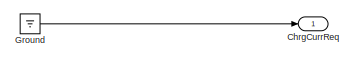
[diagram: VSC/Main VSC - part 1/5, top right region]
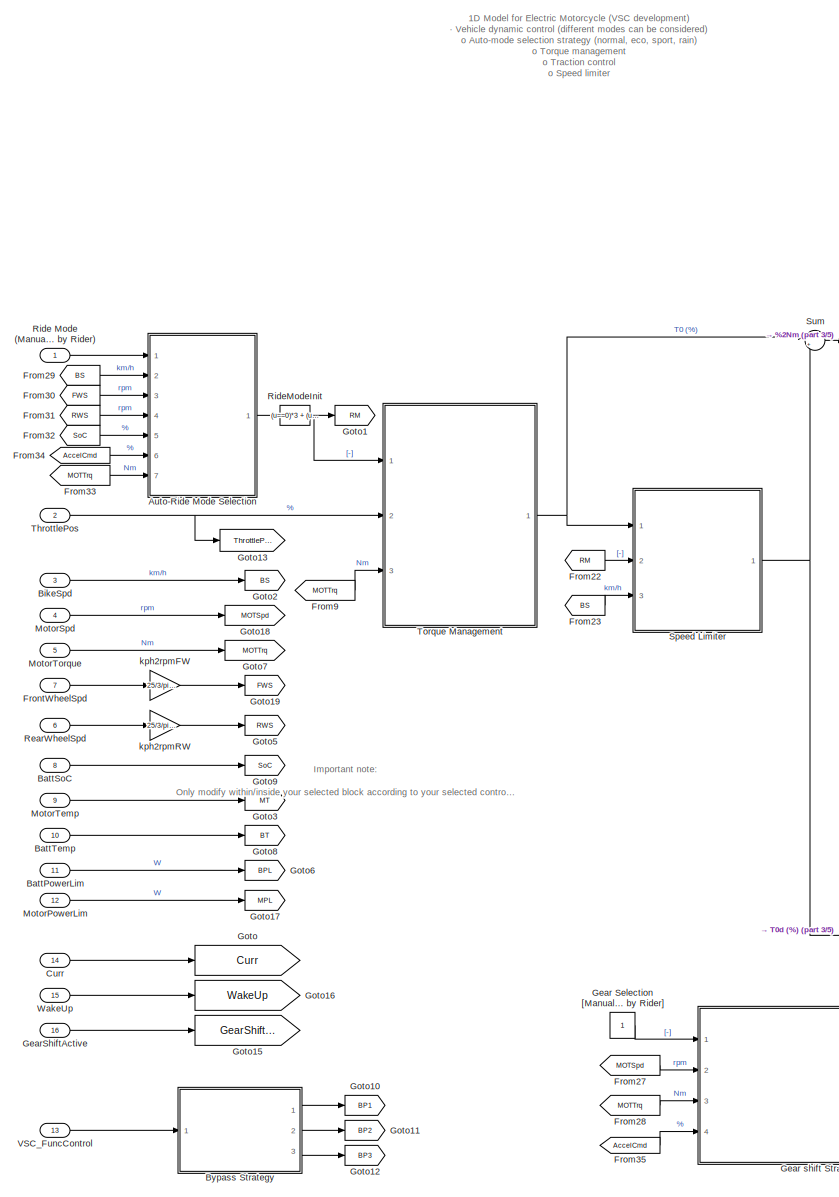
[diagram: VSC/Main VSC - part 2/5, left side, full height]
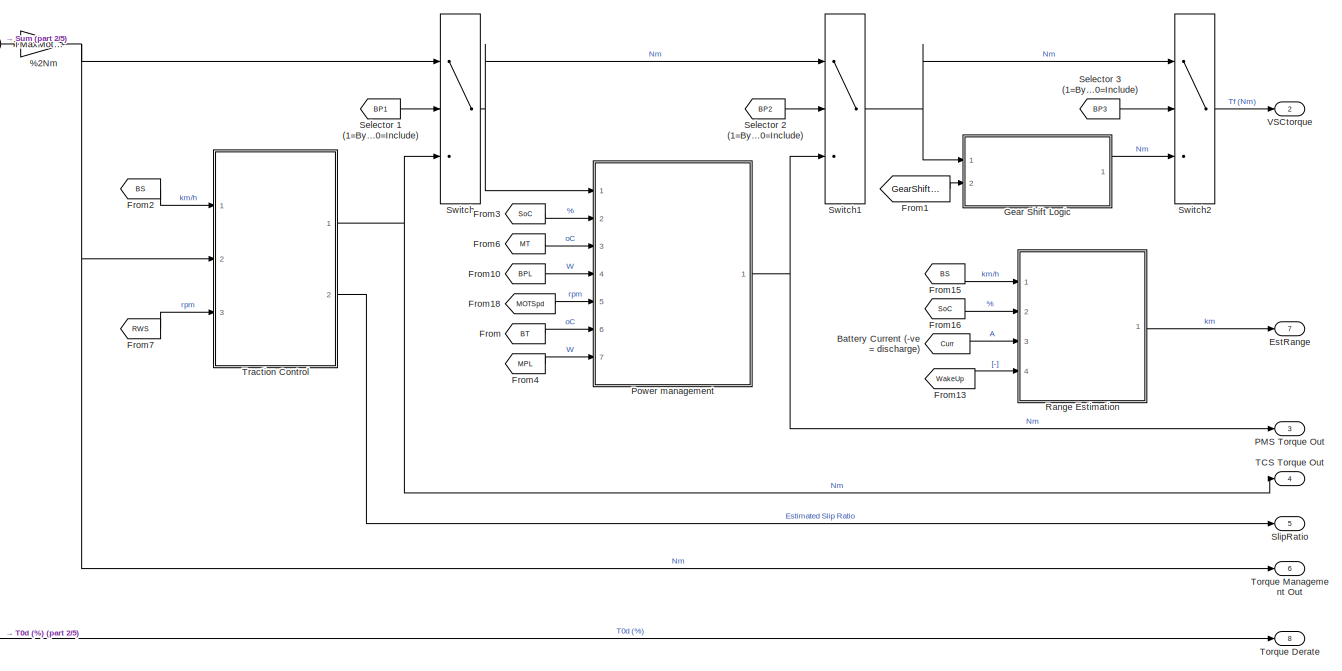
[diagram: VSC/Main VSC - part 3/5, middle right region]
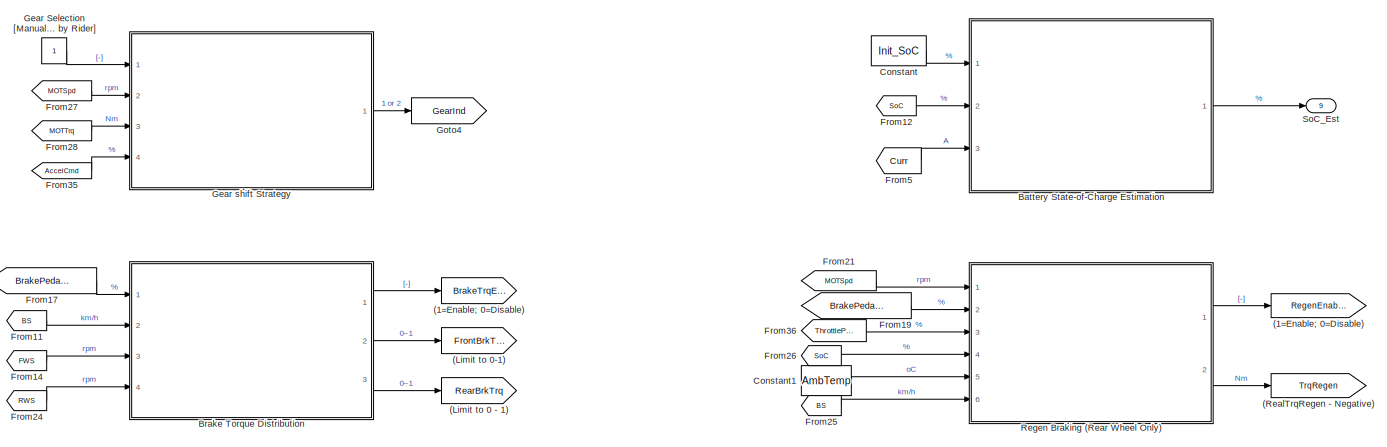
[diagram: VSC/Main VSC - part 4/5, bottom center region]
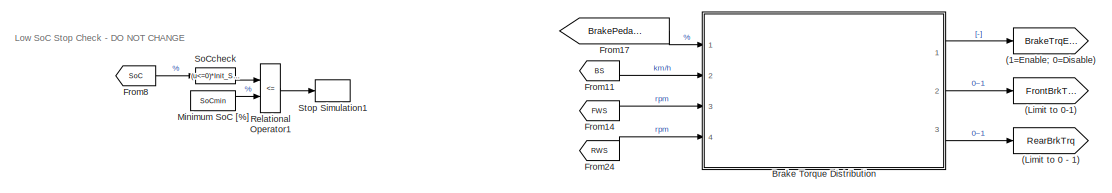
[diagram: VSC/Main VSC - part 5/5, bottom left region]
BLOCK [SubSystem] VSC/Main VSC
  Ports = [16, 9]
  RequestExecContextInheritance = off
BLOCK [Gain] VSC/Main VSC/%2Nm
  Gain = TMaxMotor/100
  OutDataTypeStr = Inherit: Same as input
BLOCK [Goto] VSC/Main VSC/(1=Enable;  0=Disable)
  GotoTag = BrakeTrqEnable
  TagVisibility = global
BLOCK [Goto] VSC/Main VSC/(1=Enable; 0=Disable)
  GotoTag = RegenEnable
  TagVisibility = global
BLOCK [Goto] VSC/Main VSC/(Limit to 0 - 1)
  GotoTag = RearBrkTrq
  TagVisibility = global
BLOCK [Goto] VSC/Main VSC/(Limit to 0-1)
  GotoTag = FrontBrkTrq
  TagVisibility = global
BLOCK [Goto] VSC/Main VSC/(RealTrqRegen - Negative)
  GotoTag = TrqRegen
  TagVisibility = global
BLOCK [SubSystem] VSC/Main VSC/Auto-Ride Mode Selection
  Ports = [7, 1]
  RequestExecContextInheritance = off
BLOCK [Inport] VSC/Main VSC/Auto-Ride Mode Selection/AccelCmd
  Port = 6
BLOCK [Inport] VSC/Main VSC/Auto-Ride Mode Selection/BikeSpd
  Port = 2
BLOCK [Constant] VSC/Main VSC/Auto-Ride Mode Selection/Constant
  Value = 0
BLOCK [Inport] VSC/Main VSC/Auto-Ride Mode Selection/FWSpd
  Port = 3
BLOCK [Ground] VSC/Main VSC/Auto-Ride Mode Selection/Ground
BLOCK [Inport] VSC/Main VSC/Auto-Ride Mode Selection/MotorTrq
  Port = 7
BLOCK [Inport] VSC/Main VSC/Auto-Ride Mode Selection/RWSpd
  Port = 4
BLOCK [Inport] VSC/Main VSC/Auto-Ride Mode Selection/Ride Mode [Manual]
BLOCK [Outport] VSC/Main VSC/Auto-Ride Mode Selection/RideMode
BLOCK [Inport] VSC/Main VSC/Auto-Ride Mode Selection/SoC
  Port = 5
BLOCK [Switch] VSC/Main VSC/Auto-Ride Mode Selection/Switch
  Criteria = u2 > Threshold
  InputSameDT = off
  SaturateOnIntegerOverflow = off
BLOCK [Inport] VSC/Main VSC/BattPowerLim
  Port = 11
BLOCK [Inport] VSC/Main VSC/BattSoC
  Port = 8
BLOCK [Inport] VSC/Main VSC/BattTemp
  Port = 10
BLOCK [From] VSC/Main VSC/Battery Current (-ve = discharge)
  GotoTag = Curr
BLOCK [SubSystem] VSC/Main VSC/Battery State-of-Charge Estimation
  Ports = [3, 1]
  RequestExecContextInheritance = off
BLOCK [Inport] VSC/Main VSC/Battery State-of-Charge Estimation/BattCurrent
  Port = 3
BLOCK [Outport] VSC/Main VSC/Battery State-of-Charge Estimation/EstSoC
BLOCK [Inport] VSC/Main VSC/Battery State-of-Charge Estimation/InitSoC
BLOCK [Inport] VSC/Main VSC/Battery State-of-Charge Estimation/RefSoC (to compare with your estimated SoC)
  Port = 2
BLOCK [Inport] VSC/Main VSC/BikeSpd
  Port = 3
BLOCK [SubSystem] VSC/Main VSC/Brake Torque Distribution
  Ports = [4, 3]
  RequestExecContextInheritance = off
BLOCK [Inport] VSC/Main VSC/Brake Torque Distribution/BikeSpd
  Port = 2
BLOCK [Outport] VSC/Main VSC/Brake Torque Distribution/BrakeEnable
BLOCK [Inport] VSC/Main VSC/Brake Torque Distribution/BrakePedalPos
BLOCK [Outport] VSC/Main VSC/Brake Torque Distribution/FrontBrkCmd
  Port = 2
BLOCK [Inport] VSC/Main VSC/Brake Torque Distribution/FrontWheelSpd
  Port = 3
BLOCK [Ground] VSC/Main VSC/Brake Torque Distribution/Ground
BLOCK [Outport] VSC/Main VSC/Brake Torque Distribution/RearBrkCmd
  Port = 3
BLOCK [Inport] VSC/Main VSC/Brake Torque Distribution/RearWheelSpd
  Port = 4
BLOCK [Terminator] VSC/Main VSC/Brake Torque Distribution/Terminator
BLOCK [Gain] VSC/Main VSC/Brake Torque Distribution/km//h 2 rpm
  Gain = 25/3/pi/0.32
BLOCK [SubSystem] VSC/Main VSC/Bypass Strategy
  ErrorFcn = Stateflow.Translate.translate
  PermitHierarchicalResolution = ExplicitOnly
  Ports = [1, 3]
  RequestExecContextInheritance = off
  SFBlockType = MATLAB Function
  TreatAsAtomicUnit = on
BLOCK [Demux] VSC/Main VSC/Bypass Strategy/ Demux 
  Outputs = 1
  Ports = [1, 1]
BLOCK [S-Function] VSC/Main VSC/Bypass Strategy/ SFunction 
  EnableBusSupport = on
  FunctionName = sf_sfun
  PortCounts = [1 4]
  Ports = [1, 4]
  SFcnIsStateOwnerBlock = off
  SFunctionDeploymentMode = off
  Tag = Stateflow S-Function 2
BLOCK [Terminator] VSC/Main VSC/Bypass Strategy/ Terminator 
BLOCK [Outport] VSC/Main VSC/Bypass Strategy/BP1
BLOCK [Outport] VSC/Main VSC/Bypass Strategy/BP2
  Port = 2
BLOCK [Outport] VSC/Main VSC/Bypass Strategy/BP3
  Port = 3
BLOCK [Inport] VSC/Main VSC/Bypass Strategy/u
BLOCK [Outport] VSC/Main VSC/ChrgCurrReq
BLOCK [Constant] VSC/Main VSC/Constant
  Value = Init_SoC
BLOCK [Constant] VSC/Main VSC/Constant1
  Value = AmbTemp
BLOCK [Inport] VSC/Main VSC/Curr
  Port = 14
BLOCK [Outport] VSC/Main VSC/EstRange
  Port = 7
BLOCK [From] VSC/Main VSC/From
  GotoTag = BT
BLOCK [From] VSC/Main VSC/From1
  GotoTag = GearShiftActive
  TagVisibility = global
BLOCK [From] VSC/Main VSC/From10
  GotoTag = BPL
BLOCK [From] VSC/Main VSC/From11
  GotoTag = BS
BLOCK [From] VSC/Main VSC/From12
  GotoTag = SoC
BLOCK [From] VSC/Main VSC/From13
  GotoTag = WakeUp
  TagVisibility = global
BLOCK [From] VSC/Main VSC/From14
  GotoTag = FWS
BLOCK [From] VSC/Main VSC/From15
  GotoTag = BS
BLOCK [From] VSC/Main VSC/From16
  GotoTag = SoC
BLOCK [From] VSC/Main VSC/From17
  GotoTag = BrakePedalPosition
  TagVisibility = global
BLOCK [From] VSC/Main VSC/From18
  GotoTag = MOTSpd
BLOCK [From] VSC/Main VSC/From19
  GotoTag = BrakePedalPosition
  TagVisibility = global
BLOCK [From] VSC/Main VSC/From2
  GotoTag = BS
BLOCK [From] VSC/Main VSC/From21
  GotoTag = MOTSpd
BLOCK [From] VSC/Main VSC/From22
  GotoTag = RM
BLOCK [From] VSC/Main VSC/From23
  GotoTag = BS
BLOCK [From] VSC/Main VSC/From24
  GotoTag = RWS
BLOCK [From] VSC/Main VSC/From25
  GotoTag = BS
BLOCK [From] VSC/Main VSC/From26
  GotoTag = SoC
BLOCK [From] VSC/Main VSC/From27
  GotoTag = MOTSpd
BLOCK [From] VSC/Main VSC/From28
  GotoTag = MOTTrq
BLOCK [From] VSC/Main VSC/From29
  GotoTag = BS
BLOCK [From] VSC/Main VSC/From3
  GotoTag = SoC
BLOCK [From] VSC/Main VSC/From30
  GotoTag = FWS
BLOCK [From] VSC/Main VSC/From31
  GotoTag = RWS
BLOCK [From] VSC/Main VSC/From32
  GotoTag = SoC
BLOCK [From] VSC/Main VSC/From33
  GotoTag = MOTTrq
BLOCK [From] VSC/Main VSC/From34
  GotoTag = AccelCmd
  TagVisibility = global
BLOCK [From] VSC/Main VSC/From35
  GotoTag = AccelCmd
  TagVisibility = global
BLOCK [From] VSC/Main VSC/From36
  GotoTag = ThrottlePos
BLOCK [From] VSC/Main VSC/From4
  GotoTag = MPL
BLOCK [From] VSC/Main VSC/From5
  GotoTag = Curr
BLOCK [From] VSC/Main VSC/From6
  GotoTag = MT
BLOCK [From] VSC/Main VSC/From7
  GotoTag = RWS
BLOCK [From] VSC/Main VSC/From8
  GotoTag = SoC
BLOCK [From] VSC/Main VSC/From9
  GotoTag = MOTTrq
BLOCK [Inport] VSC/Main VSC/FrontWheelSpd
  Port = 7
BLOCK [Constant] VSC/Main VSC/Gear Selection [Manually selected by Rider]
  NameLocation = top
BLOCK [SubSystem] VSC/Main VSC/Gear Shift Logic
  Ports = [2, 1]
  RequestExecContextInheritance = off
BLOCK [Outport] VSC/Main VSC/Gear Shift Logic/FinalTorque
BLOCK [SubSystem] VSC/Main VSC/Gear Shift Logic/Gear Shift Logic
  ErrorFcn = Stateflow.Translate.translate
  PermitHierarchicalResolution = ExplicitOnly
  Ports = [2, 1]
  RequestExecContextInheritance = off
  SFBlockType = Chart
  TreatAsAtomicUnit = on
BLOCK [Demux] VSC/Main VSC/Gear Shift Logic/Gear Shift Logic/ Demux 
  Outputs = 1
  Ports = [1, 1]
BLOCK [S-Function] VSC/Main VSC/Gear Shift Logic/Gear Shift Logic/ SFunction 
  EnableBusSupport = on
  FunctionName = sf_sfun
  PortCounts = [2 2]
  Ports = [2, 2]
  SFcnIsStateOwnerBlock = off
  SFunctionDeploymentMode = off
  Tag = Stateflow S-Function 3
BLOCK [Terminator] VSC/Main VSC/Gear Shift Logic/Gear Shift Logic/ Terminator 
BLOCK [Inport] VSC/Main VSC/Gear Shift Logic/Gear Shift Logic/ShiftInd
  Port = 2
BLOCK [Inport] VSC/Main VSC/Gear Shift Logic/Gear Shift Logic/T3
BLOCK [Outport] VSC/Main VSC/Gear Shift Logic/Gear Shift Logic/TqMod
BLOCK [Inport] VSC/Main VSC/Gear Shift Logic/ShiftInd
  Port = 2
BLOCK [Sum] VSC/Main VSC/Gear Shift Logic/Sum
  Inputs = |+-
  Ports = [2, 1]
BLOCK [Inport] VSC/Main VSC/Gear Shift Logic/T3
BLOCK [SubSystem] VSC/Main VSC/Gear shift Strategy
  Ports = [4, 1]
  RequestExecContextInheritance = off
BLOCK [Inport] VSC/Main VSC/Gear shift Strategy/AccelCmd
  Port = 4
BLOCK [Outport] VSC/Main VSC/Gear shift Strategy/Gear
BLOCK [Inport] VSC/Main VSC/Gear shift Strategy/Manual
BLOCK [Inport] VSC/Main VSC/Gear shift Strategy/MotorSpd
  Port = 2
BLOCK [Inport] VSC/Main VSC/Gear shift Strategy/MotorTorque
  Port = 3
BLOCK [Inport] VSC/Main VSC/GearShiftActive
  Port = 16
BLOCK [Goto] VSC/Main VSC/Goto
  GotoTag = Curr
BLOCK [Goto] VSC/Main VSC/Goto1
  GotoTag = RM
BLOCK [Goto] VSC/Main VSC/Goto10
  GotoTag = BP1
BLOCK [Goto] VSC/Main VSC/Goto11
  GotoTag = BP2
BLOCK [Goto] VSC/Main VSC/Goto12
  GotoTag = BP3
BLOCK [Goto] VSC/Main VSC/Goto13
  GotoTag = ThrottlePos
BLOCK [Goto] VSC/Main VSC/Goto15
  GotoTag = GearShiftActive
  TagVisibility = global
BLOCK [Goto] VSC/Main VSC/Goto16
  GotoTag = WakeUp
  TagVisibility = global
BLOCK [Goto] VSC/Main VSC/Goto17
  GotoTag = MPL
BLOCK [Goto] VSC/Main VSC/Goto18
  GotoTag = MOTSpd
BLOCK [Goto] VSC/Main VSC/Goto19
  GotoTag = FWS
BLOCK [Goto] VSC/Main VSC/Goto2
  GotoTag = BS
BLOCK [Goto] VSC/Main VSC/Goto3
  GotoTag = MT
BLOCK [Goto] VSC/Main VSC/Goto4
  GotoTag = GearInd
  TagVisibility = global
BLOCK [Goto] VSC/Main VSC/Goto5
  GotoTag = RWS
BLOCK [Goto] VSC/Main VSC/Goto6
  GotoTag = BPL
BLOCK [Goto] VSC/Main VSC/Goto7
  GotoTag = MOTTrq
BLOCK [Goto] VSC/Main VSC/Goto8
  GotoTag = BT
BLOCK [Goto] VSC/Main VSC/Goto9
  GotoTag = SoC
BLOCK [Ground] VSC/Main VSC/Ground
BLOCK [Constant] VSC/Main VSC/Minimum SoC [%]
  Value = SoCmin
BLOCK [Inport] VSC/Main VSC/MotorPowerLim
  Port = 12
BLOCK [Inport] VSC/Main VSC/MotorSpd
  Port = 4
BLOCK [Inport] VSC/Main VSC/MotorTemp
  Port = 9
BLOCK [Inport] VSC/Main VSC/MotorTorque
  Port = 5
BLOCK [Outport] VSC/Main VSC/PMS Torque Out
  Port = 3
BLOCK [SubSystem] VSC/Main VSC/Power management
  Ports = [7, 1]
  RequestExecContextInheritance = off
BLOCK [Inport] VSC/Main VSC/Power management/BattPwrLim
  Port = 4
BLOCK [Inport] VSC/Main VSC/Power management/BattSoC
  Port = 2
BLOCK [Inport] VSC/Main VSC/Power management/BatteryTemp
  Port = 6
BLOCK [Ground] VSC/Main VSC/Power management/Ground
BLOCK [Inport] VSC/Main VSC/Power management/MotSpd
  Port = 5
BLOCK [Inport] VSC/Main VSC/Power management/MotorPwrLim
  Port = 7
BLOCK [Inport] VSC/Main VSC/Power management/MotorTemp
  Port = 3
BLOCK [Sum] VSC/Main VSC/Power management/Sum
  Inputs = -+|
  Ports = [2, 1]
BLOCK [Inport] VSC/Main VSC/Power management/T2
BLOCK [Outport] VSC/Main VSC/Power management/T3
BLOCK [SubSystem] VSC/Main VSC/Range Estimation
  Ports = [4, 1]
  RequestExecContextInheritance = off
BLOCK [Constant] VSC/Main VSC/Range Estimation/AmbTemp
  Value = AmbTemp
BLOCK [Inport] VSC/Main VSC/Range Estimation/BattCurr
  Port = 3
BLOCK [Inport] VSC/Main VSC/Range Estimation/BikeSpd
BLOCK [Constant] VSC/Main VSC/Range Estimation/Minimum Allowable Battery SoC [%]
  Value = SoCmin
BLOCK [Constant] VSC/Main VSC/Range Estimation/Model Discrete Sample Time [s]
  Value = 0.01
BLOCK [SubSystem] VSC/Main VSC/Range Estimation/Range estimation
  Ports = [9, 1]
  RequestExecContextInheritance = off
BLOCK [Inport] VSC/Main VSC/Range Estimation/Range estimation/AmbTemp
  Port = 8
BLOCK [Inport] VSC/Main VSC/Range Estimation/Range estimation/AvgConR
  Port = 6
BLOCK [Inport] VSC/Main VSC/Range Estimation/Range estimation/BSpd
BLOCK [Inport] VSC/Main VSC/Range Estimation/Range estimation/BattCurr
  Port = 7
BLOCK [Constant] VSC/Main VSC/Range Estimation/Range estimation/Constant
  Value = 0
BLOCK [Inport] VSC/Main VSC/Range Estimation/Range estimation/RMax
  Port = 3
BLOCK [Outport] VSC/Main VSC/Range Estimation/Range estimation/Ro
BLOCK [Inport] VSC/Main VSC/Range Estimation/Range estimation/SoC
  Port = 5
BLOCK [Inport] VSC/Main VSC/Range Estimation/Range estimation/SoCmin
  Port = 4
BLOCK [Inport] VSC/Main VSC/Range Estimation/Range estimation/WakeUp
  Port = 9
BLOCK [Inport] VSC/Main VSC/Range Estimation/Range estimation/dT
  Port = 2
BLOCK [Outport] VSC/Main VSC/Range Estimation/Remain Range
BLOCK [Inport] VSC/Main VSC/Range Estimation/SoC
  Port = 2
BLOCK [Fcn] VSC/Main VSC/Range Estimation/SoCcheck
  Expr = (u<=0)*Init_SoC + (u>0)*u
BLOCK [Constant] VSC/Main VSC/Range Estimation/Theoretical Max. Range [km]
  Value = 150
BLOCK [Constant] VSC/Main VSC/Range Estimation/Typical Consumption Rate [%//km]
  Value = 0.625
BLOCK [Inport] VSC/Main VSC/Range Estimation/WakeUp
  Port = 4
BLOCK [Inport] VSC/Main VSC/RearWheelSpd
  Port = 6
BLOCK [SubSystem] VSC/Main VSC/Regen Braking (Rear Wheel Only)
  Ports = [6, 2]
  RequestExecContextInheritance = off
BLOCK [Inport] VSC/Main VSC/Regen Braking (Rear Wheel Only)/AmbTemp
  Port = 5
BLOCK [Inport] VSC/Main VSC/Regen Braking (Rear Wheel Only)/BikeSpd
  Port = 6
BLOCK [Inport] VSC/Main VSC/Regen Braking (Rear Wheel Only)/BrakePedalPos
  Port = 2
BLOCK [Constant] VSC/Main VSC/Regen Braking (Rear Wheel Only)/Constant1
  Value = 0
BLOCK [Constant] VSC/Main VSC/Regen Braking (Rear Wheel Only)/Constant2
BLOCK [Constant] VSC/Main VSC/Regen Braking (Rear Wheel Only)/Constant3
  Value = 10
BLOCK [Constant] VSC/Main VSC/Regen Braking (Rear Wheel Only)/Constant5
  Value = 50
BLOCK [Constant] VSC/Main VSC/Regen Braking (Rear Wheel Only)/Example (Nm)
  Value = -5
BLOCK [Outport] VSC/Main VSC/Regen Braking (Rear Wheel Only)/Generator Torque [-30 ~ 0Nm]
  Port = 2
BLOCK [Logic] VSC/Main VSC/Regen Braking (Rear Wheel Only)/Logical Operator
  AllPortsSameDT = off
  OutDataTypeStr = boolean
  Ports = [2, 1]
BLOCK [Inport] VSC/Main VSC/Regen Braking (Rear Wheel Only)/MotorSpd
BLOCK [Outport] VSC/Main VSC/Regen Braking (Rear Wheel Only)/RegenEn [0 1]
BLOCK [RelationalOperator] VSC/Main VSC/Regen Braking (Rear Wheel Only)/Relational Operator
  InputSameDT = off
  Operator = <=
  OutDataTypeStr = boolean
  Ports = [2, 1]
  RndMeth = Simplest
BLOCK [RelationalOperator] VSC/Main VSC/Regen Braking (Rear Wheel Only)/Relational Operator1
  InputSameDT = off
  Operator = >
  OutDataTypeStr = boolean
  Ports = [2, 1]
  RndMeth = Simplest
BLOCK [Inport] VSC/Main VSC/Regen Braking (Rear Wheel Only)/SoC
  Port = 4
BLOCK [Switch] VSC/Main VSC/Regen Braking (Rear Wheel Only)/Switch
  Criteria = u2 > Threshold
  InputSameDT = off
  SaturateOnIntegerOverflow = off
BLOCK [Terminator] VSC/Main VSC/Regen Braking (Rear Wheel Only)/Terminator
BLOCK [Inport] VSC/Main VSC/Regen Braking (Rear Wheel Only)/ThrottlePos
  Port = 3
BLOCK [Gain] VSC/Main VSC/Regen Braking (Rear Wheel Only)/km//h 2 rpm
  Gain = 25/3/pi/0.32
BLOCK [RelationalOperator] VSC/Main VSC/Relational Operator1
  InputSameDT = off
  NameLocation = top
  Operator = <=
  OutDataTypeStr = boolean
  Ports = [2, 1]
  RndMeth = Simplest
BLOCK [Inport] VSC/Main VSC/Ride Mode (Manually selected by Rider)
  NameLocation = top
BLOCK [Fcn] VSC/Main VSC/RideModeInit
  Expr = (u==0)*3 + (u!=0)*u
  NameLocation = top
BLOCK [From] VSC/Main VSC/Selector 1 (1=Bypass; 0=Include)
  GotoTag = BP1
BLOCK [From] VSC/Main VSC/Selector 2 (1=Bypass; 0=Include)
  GotoTag = BP2
BLOCK [From] VSC/Main VSC/Selector 3 (1=Bypass; 0=Include)
  GotoTag = BP3
BLOCK [Outport] VSC/Main VSC/SlipRatio
  Port = 5
BLOCK [Outport] VSC/Main VSC/SoC_Est
  Port = 9
BLOCK [Fcn] VSC/Main VSC/SoCcheck
  Expr = (u<=0)*Init_SoC + (u>0)*u
BLOCK [SubSystem] VSC/Main VSC/Speed Limiter
  Ports = [3, 1]
  RequestExecContextInheritance = off
BLOCK [Inport] VSC/Main VSC/Speed Limiter/BikeSpeed
  Port = 3
BLOCK [Constant] VSC/Main VSC/Speed Limiter/Constant1
  Value = 0
BLOCK [Inport] VSC/Main VSC/Speed Limiter/DrivingTorqueCommand
BLOCK [SubSystem] VSC/Main VSC/Speed Limiter/Forward Torque Derater
  Ports = [2, 1]
  RequestExecContextInheritance = off
BLOCK [Lookup_n-D] VSC/Main VSC/Speed Limiter/Forward Torque Derater/1-D Lookup Table
  BreakpointsForDimension1 = [0,112,114,116,119,120,120.5,121,150]
  InputPortMap = u0
  InternalRulePriority = Speed
  NumberOfTableDimensions = 1
  Ports = [1, 1]
  RndMeth = Simplest
  Table = [0,0,0,2,15,25,35,45,70]*TMaxMotor/100
BLOCK [Lookup_n-D] VSC/Main VSC/Speed Limiter/Forward Torque Derater/1-D Lookup Table2
  BreakpointsForDimension1 = [0,112,114,116,119,120,120.5,121,150]
  InputPortMap = u0
  InternalRulePriority = Speed
  NumberOfTableDimensions = 1
  Ports = [1, 1]
  RndMeth = Simplest
  Table = [0,0,0,2,15,25,35,45,70]*TMaxMotor/100
BLOCK [Lookup_n-D] VSC/Main VSC/Speed Limiter/Forward Torque Derater/1-D Lookup Table4
  BreakpointsForDimension1 = [0,137,139,142,144,145,145.5,146,170]
  InputPortMap = u0
  InternalRulePriority = Speed
  NumberOfTableDimensions = 1
  Ports = [1, 1]
  RndMeth = Simplest
  Table = [0,0,0,0,10,21,28,34,100]*TMaxMotor/100
BLOCK [Lookup_n-D] VSC/Main VSC/Speed Limiter/Forward Torque Derater/1-D Lookup Table6
  BreakpointsForDimension1 = [0,177,179,181,183,184,185,185.5,186,200]
  InputPortMap = u0
  InternalRulePriority = Speed
  NumberOfTableDimensions = 1
  Ports = [1, 1]
  RndMeth = Simplest
  Table = [0,0,0,0,0,0,2,5,10,20]*TMaxMotor/100
BLOCK [Lookup_n-D] VSC/Main VSC/Speed Limiter/Forward Torque Derater/1-D Lookup Table8
  BreakpointsForDimension1 = [0,137,139,142,144,145,145.5,146,170]
  InputPortMap = u0
  InternalRulePriority = Speed
  NumberOfTableDimensions = 1
  Ports = [1, 1]
  RndMeth = Simplest
  Table = [0,0,0,0,10,21,28,34,100]*TMaxMotor/100
BLOCK [Inport] VSC/Main VSC/Speed Limiter/Forward Torque Derater/BikeSpeed
  Port = 2
BLOCK [MultiPortSwitch] VSC/Main VSC/Speed Limiter/Forward Torque Derater/Multiport Switch
  DataPortForDefault = Additional data port
  DiagnosticForDefault = None
  InputSameDT = off
  Inputs = 4
  Ports = [6, 1]
  SaturateOnIntegerOverflow = off
BLOCK [Inport] VSC/Main VSC/Speed Limiter/Forward Torque Derater/RideMode
BLOCK [Outport] VSC/Main VSC/Speed Limiter/Forward Torque Derater/TqMod
BLOCK [Inport] VSC/Main VSC/Speed Limiter/RideMode
  Port = 2
BLOCK [Saturate] VSC/Main VSC/Speed Limiter/Saturation
  LowerLimit = 0
  UpperLimit = TMaxMotor
BLOCK [Reference] VSC/Main VSC/Speed Limiter/Saturation Dynamic  REF=simulink/Discontinuities/Saturation
Dynamic
  Ports = [3, 1]
  SourceBlock = simulink/Discontinuities/Saturation\nDynamic
  SourceProductBaseCode = SL
  SourceType = Saturation Dynamic
BLOCK [Outport] VSC/Main VSC/Speed Limiter/TorqueDerate 
BLOCK [Stop] VSC/Main VSC/Stop Simulation1
BLOCK [Sum] VSC/Main VSC/Sum
  Inputs = |+-
  Ports = [2, 1]
BLOCK [Switch] VSC/Main VSC/Switch
  Criteria = u2 > Threshold
  InputSameDT = off
  SaturateOnIntegerOverflow = off
BLOCK [Switch] VSC/Main VSC/Switch1
  Criteria = u2 > Threshold
  InputSameDT = off
  SaturateOnIntegerOverflow = off
BLOCK [Switch] VSC/Main VSC/Switch2
  Criteria = u2 > Threshold
  InputSameDT = off
  SaturateOnIntegerOverflow = off
BLOCK [Outport] VSC/Main VSC/TCS Torque Out
  Port = 4
BLOCK [Inport] VSC/Main VSC/ThrottlePos
  Port = 2
BLOCK [Outport] VSC/Main VSC/Torque Derate
  Port = 8
BLOCK [SubSystem] VSC/Main VSC/Torque Management
  Ports = [3, 1]
  RequestExecContextInheritance = off
BLOCK [Outport] VSC/Main VSC/Torque Management Out 
  Port = 6
BLOCK [Constant] VSC/Main VSC/Torque Management/Constant1
  Value = ThrottleBP
  VectorParams1D = off
BLOCK [Outport] VSC/Main VSC/Torque Management/DrivingTorqueCommand
BLOCK [Constant] VSC/Main VSC/Torque Management/Eco
  Value = [0 0 0 4 8 13 16 20 25 30 35 40 45 48 50 55 60 65 70 75 80]'
  VectorParams1D = off
BLOCK [Reference] VSC/Main VSC/Torque Management/Linear interpolation  REF=simulink/Lookup
Tables/Lookup
Table
Dynamic
  Ports = [3, 1]
  SourceBlock = simulink/Lookup\nTables/Lookup\nTable\nDynamic
  SourceProductBaseCode = SL
  SourceType = Lookup Table Dynamic
BLOCK [Inport] VSC/Main VSC/Torque Management/MotorTorque
  Port = 3
BLOCK [MultiPortSwitch] VSC/Main VSC/Torque Management/Multiport Switch
  DataPortForDefault = Additional data port
  InputSameDT = off
  Inputs = 4
  Ports = [6, 1]
  SaturateOnIntegerOverflow = off
BLOCK [Constant] VSC/Main VSC/Torque Management/Norm
  Value = [0 0 0 5 10 15 20 28 35 40 45 50 55 60 65 70 80 85 90 95 100]'
  VectorParams1D = off
BLOCK [Constant] VSC/Main VSC/Torque Management/Rain
  Value = [0 0 0 3 8 13 18 22 28 32 36 40 44 48 52 56 60 64 66 68 70]'
  VectorParams1D = off
BLOCK [Inport] VSC/Main VSC/Torque Management/RideMode
BLOCK [Constant] VSC/Main VSC/Torque Management/Sport
  Value = [0 0 0 5 15 20 25 30 40 50 55 60 65 75 80 90 95 100 100 100 100]'
  VectorParams1D = off
BLOCK [Inport] VSC/Main VSC/Torque Management/ThrottlePos
  Port = 2
BLOCK [SubSystem] VSC/Main VSC/Traction Control
  Ports = [3, 2]
  RequestExecContextInheritance = off
BLOCK [Inport] VSC/Main VSC/Traction Control/BikeSpeed
BLOCK [Ground] VSC/Main VSC/Traction Control/Ground
BLOCK [Inport] VSC/Main VSC/Traction Control/R Wheel Spd
  Port = 3
BLOCK [Outport] VSC/Main VSC/Traction Control/SlipRatio
  Port = 2
BLOCK [Sum] VSC/Main VSC/Traction Control/Sum
  Inputs = -+|
  Ports = [2, 1]
BLOCK [Inport] VSC/Main VSC/Traction Control/T1
  OutDataTypeStr = double
  Port = 2
BLOCK [Outport] VSC/Main VSC/Traction Control/T2
BLOCK [Terminator] VSC/Main VSC/Traction Control/Terminator
BLOCK [Terminator] VSC/Main VSC/Traction Control/Terminator1
BLOCK [SubSystem] VSC/Main VSC/Traction Control/Traction Control Derater
  Ports = [1, 1]
  RequestExecContextInheritance = off
BLOCK [Ground] VSC/Main VSC/Traction Control/Traction Control Derater/Ground
BLOCK [Inport] VSC/Main VSC/Traction Control/Traction Control Derater/T1
BLOCK [Outport] VSC/Main VSC/Traction Control/Traction Control Derater/T1d
BLOCK [Terminator] VSC/Main VSC/Traction Control/Traction Control Derater/Terminator
BLOCK [Gain] VSC/Main VSC/Traction Control/km//h2rpm
  Gain = 25/3/pi/0.32
BLOCK [Inport] VSC/Main VSC/VSC_FuncControl
  Port = 13
BLOCK [Outport] VSC/Main VSC/VSCtorque
  Port = 2
BLOCK [Inport] VSC/Main VSC/WakeUp
  Port = 15
BLOCK [Gain] VSC/Main VSC/kph2rpmFW
  Gain = 25/3/pi/0.32
BLOCK [Gain] VSC/Main VSC/kph2rpmRW
  Gain = 25/3/pi/0.32
BLOCK [Scope] VSC/Main_VSC
  Floating = off
  NumInputPorts = 8
  Ports = [8]
  ScopeSpecificationString = Simulink.scopes.TimeScopeBlockCfg('CurrentConfiguration', extmgr.ConfigurationSet(extmgr.Configuration('Core','General UI',true),extmgr.Configuration('Core','Source UI',true),extmgr.Configuration('Sources','WiredSimulink',true,'DataLoggingVariableName','Log_WMGout','DataLoggingSaveFormat','StructureWithTime'),extmgr.Configuration('Visuals','Time Domain',true,'SerializedDisplays',{struct('MinYLimRe...<+6246ch>
BLOCK [ManualSwitch] VSC/Manual Switch1
  CurrentSetting = 0
BLOCK [Constant] VSC/MotPwrLim
  Value = 45000
BLOCK [Relay] VSC/Relay
  OffSwitchValue = -1
  OnSwitchValue = 1
BLOCK [Step] VSC/Step
  After = 0
  Before = 1
  SampleTime = 0
  Time = 5
BLOCK [SubSystem] VSC/VSC High Level StateMachine
  ErrorFcn = Stateflow.Translate.translate
  PermitHierarchicalResolution = ExplicitOnly
  PortSchema = {"entries":[{"content":{"sides":[{"content":{"connectorIds":["In1","In2","In3","In4","In5","In6","In7"]},"type":"ConnectorPlacement.EquallySpacedRectSide","uuid":"94b31f0f-cb33-4f9e-a39f-e19ad949fd84"},{"content":{"connectorIds":["Out2","Out3","Out1"],"side":"RIGHT"},"type":"ConnectorPlacement.EquallySpacedRectSide","uuid":"4fdac656-a6cd-488b-a850-0c9ed1c2a5fd"},{"content":{"connectorIds":[],"side...<+290ch>
  Ports = [7, 3]
  RequestExecContextInheritance = off
  SFBlockType = Chart
  TreatAsAtomicUnit = on
BLOCK [Demux] VSC/VSC High Level StateMachine/ Demux 
  Outputs = 1
  Ports = [1, 1]
BLOCK [S-Function] VSC/VSC High Level StateMachine/ SFunction 
  EnableBusSupport = on
  FunctionName = sf_sfun
  PortCounts = [7 4]
  Ports = [7, 4]
  SFcnIsStateOwnerBlock = off
  SFunctionDeploymentMode = off
  Tag = Stateflow S-Function 5
BLOCK [Terminator] VSC/VSC High Level StateMachine/ Terminator 
BLOCK [Inport] VSC/VSC High Level StateMachine/AccPed_pc
  Port = 3
BLOCK [Inport] VSC/VSC High Level StateMachine/Brake_switch
  Port = 2
BLOCK [Inport] VSC/VSC High Level StateMachine/ChargerConnect
  Port = 4
BLOCK [Outport] VSC/VSC High Level StateMachine/CurrentState
  Port = 3
BLOCK [Outport] VSC/VSC High Level StateMachine/HVBattContactorReq
BLOCK [Inport] VSC/VSC High Level StateMachine/HVBattContactorStatus
  Port = 5
BLOCK [Inport] VSC/VSC High Level StateMachine/Ign_switch
BLOCK [Inport] VSC/VSC High Level StateMachine/Start_switch
  Port = 7
BLOCK [Outport] VSC/VSC High Level StateMachine/Torque_enable
  Port = 2
BLOCK [Inport] VSC/VSC High Level StateMachine/VehSpd_kph
  Port = 6
BLOCK [Inport] VSC/VSCInput
BLOCK [Goto] VSC/WakeUp Signal
  GotoTag = READY
  TagVisibility = global
BLOCK [Gain] VSC/rpm2kphF
  Gain = 3*pi*0.312/25
BLOCK [Gain] VSC/rpm2kphR
  Gain = 3*pi*0.315/25
ANNOTATION (root): 1D Model for Electric Motorcycle (VSC development) · Vehicle dynamic control (different modes can be considered) o Auto-mode selection strategy (normal, eco, sport, rain) o Torque management o Traction control o Speed limiter o Gear-shift strategy o Brake torque distribution strategy (front-rear) · Vehicle energy management (different modes can be considered) o Power management (battery and motor ...<+133ch>
ANNOTATION (root): Important note: Design your controller only within VSC block Do not change anything outside VSC block
ANNOTATION Battery Pack/Single Cell Model: Simscape battery??
ANNOTATION Chassis: (Equivalent braking torque applied to the Rear wheel to slow down the bike due to having the regen charge)
ANNOTATION Chassis: Body
ANNOTATION Chassis: Brake Mechanism
ANNOTATION Chassis: Divide brake cmd to front and rear wheels
ANNOTATION Chassis: Front Tyre
ANNOTATION Chassis: Rear Tyre
ANNOTATION Chassis: Regenerative Brake
ANNOTATION Chassis: Tires
ANNOTATION Chassis: Transmission
ANNOTATION Chassis: m/s
ANNOTATION Motor: Assumption: BMS has 100% efficiency (same current demand)
ANNOTATION Rider: Students to develop this logic in the VSC (using StateFlow)
ANNOTATION VSC: Important note: Design your controller only within "Main VSC" block Do not change anything outside "Main VSC" block
ANNOTATION VSC: Double click the switch to set the Ready = 1 assuming the VSC High level StateMachine is always ready to run the simulation
ANNOTATION VSC: HL VSC Portion
ANNOTATION VSC: Main VSC Portion
ANNOTATION VSC/Main VSC: 1D Model for Electric Motorcycle (VSC development) · Vehicle dynamic control (different modes can be considered) o Auto-mode selection strategy (normal, eco, sport, rain) o Torque management o Traction control o Speed limiter o Gear-shift strategy o Brake torque distribution strategy (front-rear) · Vehicle energy management (different modes can be considered) o Power management (battery and motor ...<+133ch>
ANNOTATION VSC/Main VSC: Important note: Only modify within/inside your selected block according to your selected control function from the IMA list
ANNOTATION VSC/Main VSC: Low SoC Stop Check - DO NOT CHANGE
ANNOTATION VSC/Main VSC/Auto-Ride Mode Selection: Ride Mode definition: 1 = Rain ; 2 = Eco ; 3 = Normal ; 4 = Sport Requirement: - Develop a logic in Stateflow to decide the bike operational mode according to the update of system state (inputs available for this function) Example: Switch to Sport mode when having high AccelCmd Inputs: - BikeSpd, FWSpd, RWSpd, SoC, AccelCmd, MotorTrq
ANNOTATION VSC/Main VSC/Auto-Ride Mode Selection: To be replaced by your logic
ANNOTATION VSC/Main VSC/Battery State-of-Charge Estimation: Requirement: Create a logic to estimate the State of Charge of the battery: - Use any input from the MainBus - Build an Equivalent Circuit Model (ECM) using Simulink blocks (not using battery components in Simulink) - Limit the SoC within 0 - 100% - Employ the InitSoC input as the initial SoC of the battery (can be used to interpolate the Initial remained Capacity) Note: can get ECM parameters fro...<+26ch>
ANNOTATION VSC/Main VSC/Brake Torque Distribution: Requirement: Develop a controller to distribute the brake torque applied to the front and rear wheels (already added in the Chassis model) when applying Brake Note: use any input from the Bus or elsewhere Example: some ideas about brake torque distribution from this link: https://www.drivingtests.co.nz/roadcode-questions/motorbike/motorbike-specific-questions/how-much-braking-comes-from-the-front-...<+46ch>
ANNOTATION VSC/Main VSC/Brake Torque Distribution: BrakeEnable = 0: use default values defined from the model (Front/Rear = 20%/80% by default) BrakeEnable = 1: use your own brake torque distribution
ANNOTATION VSC/Main VSC/Gear Shift Logic: Gear Shift Logic - DO NOT TOUCH
ANNOTATION VSC/Main VSC/Gear shift Strategy: Gear 1 ratio = 2.5 (speed reduction) Gear 2 ratio = 4 (speed reduction) Requirement: Develop a logic to switch between 2 speeds of the CVT transmission as shown in the Chassis model (can be expanded to more than 2 ratios). The logic could be based on vehicle speed, motor speed, Acceleration command, motor torque ... Example: when high MotorTorque, Gear 2 can be used to increase Torque; when high A...<+48ch>
ANNOTATION VSC/Main VSC/Power management: Requirement: Develop the following logics: - Battery power limit (using BattSoC, BattPwrLim) - Motor power limit (using MotorPwrLim) - Thermal derating (using MotorTemp and BatteryTemp) Note: T3 = T2 - T2d BattPwrLim and MotorPwrLim are the maximum power available on Battery and Motor, respectively Example: when high MotorTemp or BatteryTemp, Torque output will be derated
ANNOTATION VSC/Main VSC/Range Estimation/Range estimation: Requirement: Develop a logic to estimate the remaining range of the bike - Use any inputs provided here - other inputs can be collected from Bus Note: - initial remaining range could be interpolated based on current SoC - estimated range should be then derived based on several inputs, such as SOC, actual travel distance (integration of bikespeed), actual SOC drop rate - WakeUp signal is to start t...<+17ch>
ANNOTATION VSC/Main VSC/Regen Braking (Rear Wheel Only): (Negative value - To regenerative charge the battery)
ANNOTATION VSC/Main VSC/Regen Braking (Rear Wheel Only): (To enable the regen function)
ANNOTATION VSC/Main VSC/Regen Braking (Rear Wheel Only): Note: Assume the Regen torque is smaller than Maximum Inverter Torque depending on maximum allowable charging power of the battery (-30 ~ 0Nm)
ANNOTATION VSC/Main VSC/Regen Braking (Rear Wheel Only): Requirement: Develop a controller to generate the regen torque for regenerative purposes when applying Brake and/or releasing the Throttle (e.g. Throttle < 10% and/or MotorSpd > 50rpm) Note: - You may need to change the kP = [0.1 ~ 0.2] (in Workspace) to allow the ThrottlePos drops to <10% when deceleration - The model requires 02 outputs for regen function to be able to work which are: RegenEn, G...<+167ch>
ANNOTATION VSC/Main VSC/Regen Braking (Rear Wheel Only): Examble: logic to enable/disable Regen function - Can be improved by your own logic
ANNOTATION VSC/Main VSC/Speed Limiter: Requirement: Create a closed-loop controller inside "Forward Torque Derater" block to ensure that the bike speed does not come out of range within its current operation mode, by considering: Input: (you can use all or some of these available inputs: BikeSpeed, RideMode, TorqueDemand), more inputs can be collected from the Bus Output: controlled TorqueDerate Note: the logic inside "Forward Torque D...<+80ch>
ANNOTATION VSC/Main VSC/Speed Limiter: Fixed saturation - DO NOT CHANGE
ANNOTATION VSC/Main VSC/Speed Limiter/Forward Torque Derater: ECO
ANNOTATION VSC/Main VSC/Speed Limiter/Forward Torque Derater: NORMAL
ANNOTATION VSC/Main VSC/Speed Limiter/Forward Torque Derater: NORMAL (Default)
ANNOTATION VSC/Main VSC/Speed Limiter/Forward Torque Derater: RAIN
ANNOTATION VSC/Main VSC/Speed Limiter/Forward Torque Derater: SPORT
ANNOTATION VSC/Main VSC/Torque Management: y is the Reference Torque for your closed-loop controller
ANNOTATION VSC/Main VSC/Torque Management: Requirement: Create a closed-loop controller to control the torque demand (TqDemand) to follow the desired torque (y) interpolated based on ThrottleBP position - Use MotorTorque input as the actual torque feedback of the motor Note: in here we have an open-loop torque demand (y), which is linear interpolated based on the ThrottleBP and RideMode
ANNOTATION VSC/Main VSC/Torque Management: Fixed Open-loop Torque Map - DO NOT CHANGE or DELETE
ANNOTATION VSC/Main VSC/Traction Control: Requirement: Develop a logic for Traction control derater - Calculate SlipRatio using Front and Rear wheel speeds - A logic to define the Traction control derater for T1d (to reduce the wheel slip when operating at different road conditions) Note: T2 = T1 - T1d
LINE Accelerator/Accelerator Dynamics:1 -> Accelerator/[%] Accelerator Pedal Position:1
NET Accelerator/Accelerator Limitter:1 -> Accelerator/Accelerator Dynamics:1, Accelerator/Goto:1
LINE Accelerator/Bus Selector:1 -> Accelerator/Accelerator Limitter:1
LINE Accelerator/Rider Command:1 -> Accelerator/Bus Selector:1
LINE Ambient/Ambient Temperature [C]:1 -> Ambient/Bus Creator:1
LINE Ambient/Bus Creator:1 -> Ambient/Goto4:1
LINE Ambient/From:1 -> Ambient/Bus Creator:2
LINE Ambient/Road Condition:1 -> Ambient/Goto2:1
LINE Battery Pack/Bus Creator:1 -> Battery Pack/Goto1:1
LINE Battery Pack/Bus Selector1:1 -> Battery Pack/Single Cell Model:1
LINE Battery Pack/Bus Selector1:2 -> Battery Pack/batt2cellCurrent:1
NET Battery Pack/Bus Selector2:1 -> Battery Pack/V:1, Battery Pack/cell2batVolt:1
NET Battery Pack/Bus Selector2:2 -> Battery Pack/Bus Creator:2, Battery Pack/SoC:1
LINE Battery Pack/Bus Selector2:3 -> Battery Pack/Bus Creator:3
LINE Battery Pack/From14:1 -> Battery Pack/Bus Selector1:1
LINE Battery Pack/IntialSoC:1 -> Battery Pack/Single Cell Model:3
LINE Battery Pack/Single Cell Model/BatteryCellCurrent:1 -> Battery Pack/Single Cell Model/Equivalent Circuit Battery:2
NET Battery Pack/Single Cell Model/Bus Creator:1 -> Battery Pack/Single Cell Model/Cell State:1, Battery Pack/Single Cell Model/V, T, SoC, OCV:1
LINE Battery Pack/Single Cell Model/Bus Selector:1 -> Battery Pack/Single Cell Model/Bus Creator:1
LINE Battery Pack/Single Cell Model/Bus Selector:2 -> Battery Pack/Single Cell Model/to%:1
LINE Battery Pack/Single Cell Model/Constant1:1 -> Battery Pack/Single Cell Model/Lookup Table Dynamic:2
LINE Battery Pack/Single Cell Model/Constant2:1 -> Battery Pack/Single Cell Model/Lookup Table Dynamic:3
LINE Battery Pack/Single Cell Model/Constant:1 -> Battery Pack/Single Cell Model/Sum:2
LINE Battery Pack/Single Cell Model/Equivalent Circuit Battery:1 -> Battery Pack/Single Cell Model/Bus Selector:1
LINE Battery Pack/Single Cell Model/Equivalent Circuit Battery:2 -> Battery Pack/Single Cell Model/Terminator:1
LINE Battery Pack/Single Cell Model/Ground1:1 -> Battery Pack/Single Cell Model/Bus Creator:5
LINE Battery Pack/Single Cell Model/Ground2:1 -> Battery Pack/Single Cell Model/Bus Creator:2
LINE Battery Pack/Single Cell Model/Ground:1 -> Battery Pack/Single Cell Model/Bus Creator:4
LINE Battery Pack/Single Cell Model/Initial SoC:1 -> Battery Pack/Single Cell Model/Lookup Table Dynamic:1
LINE Battery Pack/Single Cell Model/Lookup Table Dynamic:1 -> Battery Pack/Single Cell Model/Equivalent Circuit Battery:1
LINE Battery Pack/Single Cell Model/Sum:1 -> Battery Pack/Single Cell Model/Equivalent Circuit Battery:3
LINE Battery Pack/Single Cell Model/Temp:1 -> Battery Pack/Single Cell Model/Sum:1
LINE Battery Pack/Single Cell Model/to%:1 -> Battery Pack/Single Cell Model/Bus Creator:3
LINE Battery Pack/Single Cell Model:1 -> Battery Pack/Bus Selector2:1
NET Battery Pack/batt2cellCurrent:1 -> Battery Pack/I:1, Battery Pack/Single Cell Model:2
LINE Battery Pack/cell2batVolt:1 -> Battery Pack/Bus Creator:1
LINE Battery Pack:1 -> Battery Scope:1
LINE Battery Pack:2 -> Battery Scope:2
LINE Battery Pack:3 -> Battery Scope:3
LINE Bus Creator1:1 -> Delay:1
LINE Chassis/2-Speeds CVT/Abs1:1 -> Chassis/2-Speeds CVT/Relational Operator:2
LINE Chassis/2-Speeds CVT/Constant:1 -> Chassis/2-Speeds CVT/Relational Operator:1
LINE Chassis/2-Speeds CVT/Data Type Conversion:1 -> Chassis/2-Speeds CVT/Switch:2
LINE Chassis/2-Speeds CVT/Gear1:1 -> Chassis/2-Speeds CVT/Switch:3
LINE Chassis/2-Speeds CVT/Gear2:1 -> Chassis/2-Speeds CVT/Switch:1
LINE Chassis/2-Speeds CVT/GearSel:1 -> Chassis/2-Speeds CVT/Abs1:1
LINE Chassis/2-Speeds CVT/Relational Operator:1 -> Chassis/2-Speeds CVT/Data Type Conversion:1
LINE Chassis/2-Speeds CVT/Subsystem1/PS-Simulink Converter1:1 -> Chassis/2-Speeds CVT/Subsystem1/Spd:1
LINE Chassis/2-Speeds CVT/Subsystem1/PS-Simulink Converter2:1 -> Chassis/2-Speeds CVT/Subsystem1/Terminator2:1
LINE Chassis/2-Speeds CVT/Subsystem1/PS-Simulink Converter:1 -> Chassis/2-Speeds CVT/Subsystem1/Trq:1
LINE Chassis/2-Speeds CVT/Subsystem1:1 -> Chassis/2-Speeds CVT/Terminator3:1
LINE Chassis/2-Speeds CVT/Subsystem1:2 -> Chassis/2-Speeds CVT/Terminator4:1
LINE Chassis/2-Speeds CVT/Switch:1 -> Chassis/2-Speeds CVT/Simulink-PS Converter1:1
LINE Chassis/B,C,D,E/Bus to Vector:1 -> Chassis/B,C,D,E/B,C,D,E:1
LINE Chassis/B,C,D,E/Constant10:1 -> Chassis/B,C,D,E/Mux3:3
LINE Chassis/B,C,D,E/Constant11:1 -> Chassis/B,C,D,E/Mux3:4
LINE Chassis/B,C,D,E/Constant12:1 -> Chassis/B,C,D,E/Mux4:3
LINE Chassis/B,C,D,E/Constant13:1 -> Chassis/B,C,D,E/Mux4:4
LINE Chassis/B,C,D,E/Constant14:1 -> Chassis/B,C,D,E/Mux4:1
LINE Chassis/B,C,D,E/Constant15:1 -> Chassis/B,C,D,E/Mux4:2
LINE Chassis/B,C,D,E/Constant1:1 -> Chassis/B,C,D,E/Mux1:2
LINE Chassis/B,C,D,E/Constant2:1 -> Chassis/B,C,D,E/Mux1:3
LINE Chassis/B,C,D,E/Constant3:1 -> Chassis/B,C,D,E/Mux1:4
LINE Chassis/B,C,D,E/Constant4:1 -> Chassis/B,C,D,E/Mux2:1
LINE Chassis/B,C,D,E/Constant5:1 -> Chassis/B,C,D,E/Mux2:2
LINE Chassis/B,C,D,E/Constant6:1 -> Chassis/B,C,D,E/Mux2:3
LINE Chassis/B,C,D,E/Constant7:1 -> Chassis/B,C,D,E/Mux2:4
LINE Chassis/B,C,D,E/Constant8:1 -> Chassis/B,C,D,E/Mux3:1
LINE Chassis/B,C,D,E/Constant9:1 -> Chassis/B,C,D,E/Mux3:2
LINE Chassis/B,C,D,E/Constant:1 -> Chassis/B,C,D,E/Mux1:1
LINE Chassis/B,C,D,E/From:1 -> Chassis/B,C,D,E/Multiport Switch:1
LINE Chassis/B,C,D,E/Multiport Switch:1 -> Chassis/B,C,D,E/Bus to Vector:1
LINE Chassis/B,C,D,E/Mux1:1 -> Chassis/B,C,D,E/Multiport Switch:2
LINE Chassis/B,C,D,E/Mux2:1 -> Chassis/B,C,D,E/Multiport Switch:3
LINE Chassis/B,C,D,E/Mux3:1 -> Chassis/B,C,D,E/Multiport Switch:4
LINE Chassis/B,C,D,E/Mux4:1 -> Chassis/B,C,D,E/Multiport Switch:5
LINE Chassis/B,C,D,E:1 -> Chassis/Simulink-PS Converter6:1
LINE Chassis/BikeAccl_m//s2:1 -> Chassis/Gain:1
LINE Chassis/BrakeDynamics:1 -> Chassis/BrakePedal Position [%]:1
LINE Chassis/BrakeLim:1 -> Chassis/MakePositive:1
LINE Chassis/BrakePresFront:1 -> Chassis/Simulink-PS Converter1:1
LINE Chassis/BrakePresRear:1 -> Chassis/Simulink-PS Converter:1
LINE Chassis/Bus Selector1:1 -> Chassis/Saturation3:1
LINE Chassis/Bus Selector:1 -> Chassis/BrakeLim:1
LINE Chassis/Constant1:1 -> Chassis/Simulink-PS Converter3:1
LINE Chassis/From12:1 -> Chassis/Bus Selector1:1
LINE Chassis/From1:1 -> Chassis/pc2num:1
LINE Chassis/From22:1 -> Chassis/Switch:1
LINE Chassis/From23:1 -> Chassis/Switch1:1
LINE Chassis/From2:1 -> Chassis/Simulink-PS Converter2:1
LINE Chassis/From3:1 -> Chassis/2-Speeds CVT:1
NET Chassis/From4:1 -> Chassis/Switch1:2, Chassis/Switch:2
LINE Chassis/From5:1 -> Chassis/pc 2 num:1
LINE Chassis/From7:1 -> Chassis/RegenSwitch:2
LINE Chassis/From9:1 -> Chassis/Mux1:1
LINE Chassis/From:1 -> Chassis/Bus Selector:1
LINE Chassis/FrontBrakeDemand:1 -> Chassis/Switch:3
LINE Chassis/Gain:1 -> Chassis/[m//s2] BikeAcceleration:1
LINE Chassis/Integrator:1 -> Chassis/Mux1:2
LINE Chassis/MainBus:1 -> Chassis/Goto:1
LINE Chassis/MakePositive:1 -> Chassis/BrakeDynamics:1
LINE Chassis/Mux1:1 -> Chassis/m2km:1
LINE Chassis/No Regen:1 -> Chassis/RegenSwitch:3
LINE Chassis/PS-Simulink Converter1:1 -> Chassis/TyreSlipFr:1
LINE Chassis/PS-Simulink Converter2:1 -> Chassis/TyreSlipRr:1
LINE Chassis/PS-Simulink Converter5:1 -> Chassis/Terminator:1
NET Chassis/PS-Simulink Converter:1 -> Chassis/BikeAccl_m//s2:1, Chassis/Integrator:1, Chassis/Signal Specification1:1
LINE Chassis/RearBrakeDemand:1 -> Chassis/Switch1:3
LINE Chassis/RegenSwitch:1 -> Chassis/Sum:2
LINE Chassis/Saturation3:1 -> Chassis/Simulink-PS Converter4:1
LINE Chassis/Saturation:1 -> Chassis/BrakePresRear:1
LINE Chassis/Signal Specification1:1 -> Chassis/Unit Conversion:1
LINE Chassis/Signal Specification:1 -> Chassis/Goto3:1
LINE Chassis/Subsystem1/PS-Simulink Converter1:1 -> Chassis/Subsystem1/RWSpd:1
LINE Chassis/Subsystem1/PS-Simulink Converter2:1 -> Chassis/Subsystem1/Terminator2:1
LINE Chassis/Subsystem1/PS-Simulink Converter:1 -> Chassis/Subsystem1/Terminator3:1
LINE Chassis/Subsystem1:1 -> Chassis/Goto2:1
LINE Chassis/Subsystem2/PS-Simulink Converter1:1 -> Chassis/Subsystem2/FW Spd:1
LINE Chassis/Subsystem2/PS-Simulink Converter2:1 -> Chassis/Subsystem2/Terminator2:1
LINE Chassis/Subsystem2/PS-Simulink Converter:1 -> Chassis/Subsystem2/Terminator3:1
LINE Chassis/Subsystem2:1 -> Chassis/Goto1:1
LINE Chassis/Sum:1 -> Chassis/Saturation:1
LINE Chassis/Switch1:1 -> Chassis/Sum:1
LINE Chassis/Switch:1 -> Chassis/BrakePresFront:1
LINE Chassis/TrqRegenVsBrakeEquivalence:1 -> Chassis/RegenSwitch:1
LINE Chassis/Unit Conversion:1 -> Chassis/Signal Specification:1
LINE Chassis/m2km:1 -> Chassis/[m] BikeDistance:1
LINE Chassis/pc 2 num:1 -> Chassis/TrqRegenVsBrakeEquivalence:1
NET Chassis/pc2num:1 -> Chassis/FrontBrakeDemand:1, Chassis/RearBrakeDemand:1
LINE Chassis:1 -> ChassisScope:1
LINE Chassis:2 -> ChassisScope:2
LINE Chassis:3 -> ChassisScope:3
LINE Chassis:4 -> ChassisScope:4
LINE Delay:1 -> Goto1:1
LINE From10:1 -> Bus Creator1:10
LINE From12:1 -> Inverter:1
LINE From13:1 -> Bus Creator1:12
LINE From15:1 -> Bus Creator1:13
LINE From18:1 -> Bus Creator1:1
LINE From19:1 -> Bus Creator1:9
LINE From1:1 -> Bus Creator1:4
LINE From20:1 -> Bus Creator1:14
LINE From21:1 -> Bus Creator1:16
LINE From22:1 -> VSC:1
LINE From23:1 -> Motor:1
LINE From24:1 -> Bus Creator1:2
LINE From2:1 -> Bus Creator1:5
LINE From3:1 -> Bus Creator1:6
LINE From4:1 -> Bus Creator1:7
LINE From5:1 -> Bus Creator1:8
LINE From6:1 -> Bus Creator1:11
LINE From7:1 -> Bus Creator1:3
LINE From8:1 -> Accelerator:1
LINE From9:1 -> Chassis:1
LINE From:1 -> Bus Creator1:15
LINE Inverter/Bus Creator:1 -> Inverter/Goto2:1
LINE Inverter/Bus Selector:1 -> Inverter/RegenSwitch:3
LINE Inverter/Bus Selector:2 -> Inverter/Product1:1
LINE Inverter/Bus Selector:3 -> Inverter/Efficiency and Powerloss Calculation:2
NET Inverter/Efficiency and Powerloss Calculation/Abs:1 -> Inverter/Efficiency and Powerloss Calculation/Inv Efficiency 1-Torque (row #) 2-Speed (column #):2, Inverter/Efficiency and Powerloss Calculation/rpm2rad//s:1
LINE Inverter/Efficiency and Powerloss Calculation/Constant:1 -> Inverter/Efficiency and Powerloss Calculation/Max:2
LINE Inverter/Efficiency and Powerloss Calculation/Divide:1 -> Inverter/Efficiency and Powerloss Calculation/Sum:2
LINE Inverter/Efficiency and Powerloss Calculation/Inv Efficiency 1-Torque (row #) 2-Speed (column #):1 -> Inverter/Efficiency and Powerloss Calculation/Max:1
LINE Inverter/Efficiency and Powerloss Calculation/Max:1 -> Inverter/Efficiency and Powerloss Calculation/pc2num:1
NET Inverter/Efficiency and Powerloss Calculation/Product1:1 -> Inverter/Efficiency and Powerloss Calculation/Divide:1, Inverter/Efficiency and Powerloss Calculation/Sum:1
LINE Inverter/Efficiency and Powerloss Calculation/Spd:1 -> Inverter/Efficiency and Powerloss Calculation/Abs:1
LINE Inverter/Efficiency and Powerloss Calculation/Sum:1 -> Inverter/Efficiency and Powerloss Calculation/PwrLoss:1
NET Inverter/Efficiency and Powerloss Calculation/Trq:1 -> Inverter/Efficiency and Powerloss Calculation/Inv Efficiency 1-Torque (row #) 2-Speed (column #):1, Inverter/Efficiency and Powerloss Calculation/Product1:2
NET Inverter/Efficiency and Powerloss Calculation/pc2num:1 -> Inverter/Efficiency and Powerloss Calculation/Divide:2, Inverter/Efficiency and Powerloss Calculation/eff:1
LINE Inverter/Efficiency and Powerloss Calculation/rpm2rad//s:1 -> Inverter/Efficiency and Powerloss Calculation/Product1:1
LINE Inverter/Efficiency and Powerloss Calculation:1 -> Inverter/Bus Creator:2
LINE Inverter/Efficiency and Powerloss Calculation:2 -> Inverter/Bus Creator:3
LINE Inverter/From1:1 -> Inverter/RegenSwitch:2
LINE Inverter/From:1 -> Inverter/RegenSwitch:1
LINE Inverter/Inv Transfer Func:1 -> Inverter/Bus Creator:1
LINE Inverter/InverterInput:1 -> Inverter/Bus Selector:1
LINE Inverter/Product1:1 -> Inverter/Efficiency and Powerloss Calculation:1
LINE Inverter/RegenSwitch:1 -> Inverter/Inv Transfer Func:1
LINE Inverter/Transmission/Abs1:1 -> Inverter/Transmission/Relational Operator:2
LINE Inverter/Transmission/Constant:1 -> Inverter/Transmission/Relational Operator:1
LINE Inverter/Transmission/Data Type Conversion:1 -> Inverter/Transmission/Switch:2
LINE Inverter/Transmission/From:1 -> Inverter/Transmission/Abs1:1
LINE Inverter/Transmission/Relational Operator:1 -> Inverter/Transmission/Data Type Conversion:1
LINE Inverter/Transmission/Switch:1 -> Inverter/Transmission/Transmission:1
LINE Inverter/Transmission/Transmission1:1 -> Inverter/Transmission/Switch:3
LINE Inverter/Transmission/Transmission2:1 -> Inverter/Transmission/Switch:1
LINE Inverter/Transmission:1 -> Inverter/Product1:2
LINE Motor/Abs2:1 -> Motor/Saturation2:1
NET Motor/Battery Current:1 -> Motor/Goto1:1, Motor/Goto5:1
LINE Motor/Bus Selector1:1 -> Motor/Battery Current:1
LINE Motor/Bus Selector1:2 -> Motor/Product1:1
LINE Motor/Bus Selector1:3 -> Motor/Goto4:1
LINE Motor/Bus Selector1:4 -> Motor/pc2num:1
LINE Motor/MainBus:1 -> Motor/Bus Selector1:1
LINE Motor/Motor Efficiency/Add:1 -> Motor/Motor Efficiency/Mot_Inv_PwrLoss:1
LINE Motor/Motor Efficiency/Constant:1 -> Motor/Motor Efficiency/Max:2
LINE Motor/Motor Efficiency/Divide:1 -> Motor/Motor Efficiency/Sum:2
LINE Motor/Motor Efficiency/From:1 -> Motor/Motor Efficiency/Add:2
LINE Motor/Motor Efficiency/Max:1 -> Motor/Motor Efficiency/pc2num:1
LINE Motor/Motor Efficiency/Motor Efficiency 1-Torque (row #) 2-Speed (column #):1 -> Motor/Motor Efficiency/Max:1
NET Motor/Motor Efficiency/MotorSpd:1 -> Motor/Motor Efficiency/Motor Efficiency 1-Torque (row #) 2-Speed (column #):2, Motor/Motor Efficiency/rpm2rad//s:1
NET Motor/Motor Efficiency/MotorTrq:1 -> Motor/Motor Efficiency/Motor Efficiency 1-Torque (row #) 2-Speed (column #):1, Motor/Motor Efficiency/Product1:2
NET Motor/Motor Efficiency/Product1:1 -> Motor/Motor Efficiency/Divide:1, Motor/Motor Efficiency/MechPwr:1, Motor/Motor Efficiency/Sum:1
LINE Motor/Motor Efficiency/Sum:1 -> Motor/Motor Efficiency/Add:1
LINE Motor/Motor Efficiency/pc2num:1 -> Motor/Motor Efficiency/Divide:2
LINE Motor/Motor Efficiency/rpm2rad//s:1 -> Motor/Motor Efficiency/Product1:1
NET Motor/Motor Efficiency:1 -> Motor/Battery Current:2, Motor/Goto:1
LINE Motor/Motor Efficiency:2 -> Motor/Battery Current:3
LINE Motor/Motor Time Constant (Response Smoothing)/Divide2:1 -> Motor/Motor Time Constant (Response Smoothing)/MotorTrq:1
NET Motor/Motor Time Constant (Response Smoothing)/Gain:1 -> Motor/Motor Time Constant (Response Smoothing)/Product1:2, Motor/Motor Time Constant (Response Smoothing)/Sum:2
LINE Motor/Motor Time Constant (Response Smoothing)/Integrator:1 -> Motor/Motor Time Constant (Response Smoothing)/Gain:1
LINE Motor/Motor Time Constant (Response Smoothing)/Interpolated Zero-crossing:1 -> Motor/Motor Time Constant (Response Smoothing)/Divide2:2
NET Motor/Motor Time Constant (Response Smoothing)/MaxT:1 -> Motor/Motor Time Constant (Response Smoothing)/Divide2:1, Motor/Motor Time Constant (Response Smoothing)/Product1:1
LINE Motor/Motor Time Constant (Response Smoothing)/MotorTrqCmd:1 -> Motor/Motor Time Constant (Response Smoothing)/Sum:1
LINE Motor/Motor Time Constant (Response Smoothing)/Product1:1 -> Motor/Motor Time Constant (Response Smoothing)/Interpolated Zero-crossing:1
LINE Motor/Motor Time Constant (Response Smoothing)/Sum:1 -> Motor/Motor Time Constant (Response Smoothing)/Integrator:1
NET Motor/Motor Time Constant (Response Smoothing):1 -> Motor/Goto2:1, Motor/Motor Efficiency:2
NET Motor/Peak Motor Torque [Nm]:1 -> Motor/Motor Time Constant (Response Smoothing):1, Motor/Product:1
NET Motor/Product1:1 -> Motor/Abs2:1, Motor/Goto3:1, Motor/Motor Efficiency:1
LINE Motor/Product:1 -> Motor/Motor Time Constant (Response Smoothing):2
LINE Motor/Saturation2:1 -> Motor/Peak Motor Torque [Nm]:1
LINE Motor/Transmission/Abs1:1 -> Motor/Transmission/Relational Operator:2
LINE Motor/Transmission/Constant:1 -> Motor/Transmission/Relational Operator:1
LINE Motor/Transmission/Data Type Conversion:1 -> Motor/Transmission/Switch:2
LINE Motor/Transmission/From:1 -> Motor/Transmission/Abs1:1
LINE Motor/Transmission/Relational Operator:1 -> Motor/Transmission/Data Type Conversion:1
LINE Motor/Transmission/Switch:1 -> Motor/Transmission/Transmission:1
LINE Motor/Transmission/Transmission1:1 -> Motor/Transmission/Switch:3
LINE Motor/Transmission/Transmission2:1 -> Motor/Transmission/Switch:1
LINE Motor/Transmission:1 -> Motor/Product1:2
LINE Motor/pc2num:1 -> Motor/Product:2
LINE Rider/ 1:1 -> Rider/Selector Switch:2
LINE Rider/ 2:1 -> Rider/Selector Switch:3
LINE Rider/ 5:1 -> Rider/Selector Switch:4
LINE Rider/Bus Creator1:1 -> Rider/RiderBehavior:1
LINE Rider/Bus Creator:1 -> Rider/RiderCommand:1
LINE Rider/Bus Selector1:1 -> Rider/Product1:2
LINE Rider/Bus Selector1:2 -> Rider/Goto:1
LINE Rider/Clock:1 -> Rider/MATLAB Function:1
LINE Rider/ConstSpd:1 -> Rider/Transfer Fcn:1
NET Rider/Degree:1 -> Rider/Longitudinal Driver:3, Rider/Subsystem1:1
LINE Rider/From14:1 -> Rider/Bus Selector1:1
LINE Rider/From1:1 -> Rider/MotorSpd:1
LINE Rider/From24:1 -> Rider/InvTrq:1
LINE Rider/From2:1 -> Rider/Mux1:1
LINE Rider/From6:1 -> Rider/Mux1:2
LINE Rider/Gain1:1 -> Rider/Bus Creator:2
LINE Rider/Gain:1 -> Rider/Bus Creator:1
LINE Rider/Integrator:1 -> Rider/spd2dis:1
LINE Rider/Longitudinal Driver:1 -> Rider/Terminator:1
LINE Rider/Longitudinal Driver:2 -> Rider/Gain:1
LINE Rider/Longitudinal Driver:3 -> Rider/Gain1:1
LINE Rider/MATLAB Function:1 -> Rider/Bus Creator1:1
LINE Rider/MATLAB Function:2 -> Rider/Bus Creator1:2
LINE Rider/MATLAB Function:3 -> Rider/Bus Creator1:3
LINE Rider/MATLAB Function:4 -> Rider/Bus Creator1:4
LINE Rider/MATLAB Function:5 -> Rider/Bus Creator1:5
LINE Rider/MATLAB Function:6 -> Rider/Bus Creator1:6
LINE Rider/MATLAB Function:7 -> Rider/Bus Creator1:7
LINE Rider/Mux1:1 -> Rider/ThrottlePos:1
LINE Rider/Mux:1 -> Rider/BikeSpd:1
NET Rider/Product1:1 -> Rider/Longitudinal Driver:2, Rider/Mux:2
NET Rider/Product:1 -> Rider/Integrator:1, Rider/Longitudinal Driver:1, Rider/Mux:1
LINE Rider/Ready signal1:1 -> Rider/Product1:1
LINE Rider/Ready signal:1 -> Rider/Product:1
LINE Rider/Ride Mode:1 -> Rider/Bus Creator:3
LINE Rider/SW:1 -> Rider/Selector Switch:1
LINE Rider/Selector Switch:1 -> Rider/mph2kph:1
LINE Rider/Subsystem1/Constant2:1 -> Rider/Subsystem1/Switch:2
NET Rider/Subsystem1/Constant:1 -> Rider/Subsystem1/Manual Switch:2, Rider/Subsystem1/Switch:3
LINE Rider/Subsystem1/Manual Switch:1 -> Rider/Subsystem1/Switch:1
LINE Rider/Subsystem1/Road Inclined (deg):1 -> Rider/Subsystem1/deg2rad:1
LINE Rider/Subsystem1/Switch:1 -> Rider/Subsystem1/Road Inclined (rad):1
NET Rider/Subsystem1/deg2rad:1 -> Rider/Subsystem1/Display:1, Rider/Subsystem1/Manual Switch:1
LINE Rider/Transfer Fcn:1 -> Rider/Selector Switch:5
LINE Rider/mph2kph:1 -> Rider/Product:2
LINE Rider/spd2dis:1 -> Rider/Goto1:1
LINE Rider:1 -> Speed:1
LINE Rider:2 -> Speed:2
LINE Rider:3 -> Speed:3
LINE Rider:4 -> Speed:4
LINE VSC/ VSC Ctrl:1 -> VSC/Main VSC:13
NET VSC/Amb Temps:1 -> VSC/Main VSC:10, VSC/Main VSC:9
LINE VSC/BattPwrCal:1 -> VSC/Main VSC:11
LINE VSC/Bus Creator:1 -> VSC/Goto2:1
LINE VSC/Bus Selector3:1 -> VSC/Main VSC:1
LINE VSC/Bus Selector3:10 -> VSC/Main VSC:14
LINE VSC/Bus Selector3:2 -> VSC/Main VSC:2
LINE VSC/Bus Selector3:3 -> VSC/Main VSC:3
LINE VSC/Bus Selector3:4 -> VSC/Main VSC:4
LINE VSC/Bus Selector3:5 -> VSC/Main VSC:5
LINE VSC/Bus Selector3:6 -> VSC/rpm2kphR:1
LINE VSC/Bus Selector3:7 -> VSC/rpm2kphF:1
LINE VSC/Bus Selector3:8 -> VSC/Main VSC:8
LINE VSC/Bus Selector3:9 -> VSC/BattPwrCal:1
LINE VSC/Checksum/CurrentState:1 -> VSC/Checksum/Logical Operator:1
LINE VSC/Checksum/Driving State:1 -> VSC/Checksum/Logical Operator:2
LINE VSC/Checksum/Ignition State:1 -> VSC/Checksum/Logical Operator1:1
LINE VSC/Checksum/Logical Operator1:1 -> VSC/Checksum/Logical Operator2:2
LINE VSC/Checksum/Logical Operator2:1 -> VSC/Checksum/Out1:1
LINE VSC/Checksum/Logical Operator:1 -> VSC/Checksum/Logical Operator2:1
LINE VSC/Checksum/Torque_enable:1 -> VSC/Checksum/Logical Operator1:2
LINE VSC/Checksum:1 -> VSC/Manual Switch1:1
LINE VSC/Constant1:1 -> VSC/Manual Switch1:2
LINE VSC/Constant2:1 -> VSC/VSC High Level StateMachine:2
LINE VSC/Constant3:1 -> VSC/VSC High Level StateMachine:3
LINE VSC/Constant4:1 -> VSC/VSC High Level StateMachine:4
LINE VSC/Constant5:1 -> VSC/VSC High Level StateMachine:6
LINE VSC/Constant:1 -> VSC/VSC High Level StateMachine:1
LINE VSC/Delay:1 -> VSC/Relay:1
LINE VSC/From5:1 -> VSC/Main VSC:15
LINE VSC/GearShift:1 -> VSC/Main VSC:16
NET VSC/Main VSC/%2Nm:1 -> VSC/Main VSC/Switch:1, VSC/Main VSC/Torque Management Out :1, VSC/Main VSC/Traction Control:2
LINE VSC/Main VSC/Auto-Ride Mode Selection/Constant:1 -> VSC/Main VSC/Auto-Ride Mode Selection/Switch:2
LINE VSC/Main VSC/Auto-Ride Mode Selection/Ground:1 -> VSC/Main VSC/Auto-Ride Mode Selection/Switch:1
LINE VSC/Main VSC/Auto-Ride Mode Selection/Ride Mode [Manual]:1 -> VSC/Main VSC/Auto-Ride Mode Selection/Switch:3
LINE VSC/Main VSC/Auto-Ride Mode Selection/Switch:1 -> VSC/Main VSC/Auto-Ride Mode Selection/RideMode:1
LINE VSC/Main VSC/Auto-Ride Mode Selection:1 -> VSC/Main VSC/RideModeInit:1
LINE VSC/Main VSC/BattPowerLim:1 -> VSC/Main VSC/Goto6:1
LINE VSC/Main VSC/BattSoC:1 -> VSC/Main VSC/Goto9:1
LINE VSC/Main VSC/BattTemp:1 -> VSC/Main VSC/Goto8:1
LINE VSC/Main VSC/Battery Current (-ve = discharge):1 -> VSC/Main VSC/Range Estimation:3
LINE VSC/Main VSC/Battery State-of-Charge Estimation:1 -> VSC/Main VSC/SoC_Est:1
LINE VSC/Main VSC/BikeSpd:1 -> VSC/Main VSC/Goto2:1
LINE VSC/Main VSC/Brake Torque Distribution/BikeSpd:1 -> VSC/Main VSC/Brake Torque Distribution/km//h 2 rpm:1
LINE VSC/Main VSC/Brake Torque Distribution/Ground:1 -> VSC/Main VSC/Brake Torque Distribution/BrakeEnable:1
LINE VSC/Main VSC/Brake Torque Distribution/km//h 2 rpm:1 -> VSC/Main VSC/Brake Torque Distribution/Terminator:1
LINE VSC/Main VSC/Brake Torque Distribution:1 -> VSC/Main VSC/(1=Enable;  0=Disable):1
LINE VSC/Main VSC/Brake Torque Distribution:2 -> VSC/Main VSC/(Limit to 0-1):1
LINE VSC/Main VSC/Brake Torque Distribution:3 -> VSC/Main VSC/(Limit to 0 - 1):1
LINE VSC/Main VSC/Bypass Strategy:1 -> VSC/Main VSC/Goto10:1
LINE VSC/Main VSC/Bypass Strategy:2 -> VSC/Main VSC/Goto11:1
LINE VSC/Main VSC/Bypass Strategy:3 -> VSC/Main VSC/Goto12:1
LINE VSC/Main VSC/Constant1:1 -> VSC/Main VSC/Regen Braking (Rear Wheel Only):5
LINE VSC/Main VSC/Constant:1 -> VSC/Main VSC/Battery State-of-Charge Estimation:1
LINE VSC/Main VSC/Curr:1 -> VSC/Main VSC/Goto:1
LINE VSC/Main VSC/From10:1 -> VSC/Main VSC/Power management:4
LINE VSC/Main VSC/From11:1 -> VSC/Main VSC/Brake Torque Distribution:2
LINE VSC/Main VSC/From12:1 -> VSC/Main VSC/Battery State-of-Charge Estimation:2
LINE VSC/Main VSC/From13:1 -> VSC/Main VSC/Range Estimation:4
LINE VSC/Main VSC/From14:1 -> VSC/Main VSC/Brake Torque Distribution:3
LINE VSC/Main VSC/From15:1 -> VSC/Main VSC/Range Estimation:1
LINE VSC/Main VSC/From16:1 -> VSC/Main VSC/Range Estimation:2
LINE VSC/Main VSC/From17:1 -> VSC/Main VSC/Brake Torque Distribution:1
LINE VSC/Main VSC/From18:1 -> VSC/Main VSC/Power management:5
LINE VSC/Main VSC/From19:1 -> VSC/Main VSC/Regen Braking (Rear Wheel Only):2
LINE VSC/Main VSC/From1:1 -> VSC/Main VSC/Gear Shift Logic:2
LINE VSC/Main VSC/From21:1 -> VSC/Main VSC/Regen Braking (Rear Wheel Only):1
LINE VSC/Main VSC/From22:1 -> VSC/Main VSC/Speed Limiter:2
LINE VSC/Main VSC/From23:1 -> VSC/Main VSC/Speed Limiter:3
LINE VSC/Main VSC/From24:1 -> VSC/Main VSC/Brake Torque Distribution:4
LINE VSC/Main VSC/From25:1 -> VSC/Main VSC/Regen Braking (Rear Wheel Only):6
LINE VSC/Main VSC/From26:1 -> VSC/Main VSC/Regen Braking (Rear Wheel Only):4
LINE VSC/Main VSC/From27:1 -> VSC/Main VSC/Gear shift Strategy:2
LINE VSC/Main VSC/From28:1 -> VSC/Main VSC/Gear shift Strategy:3
LINE VSC/Main VSC/From29:1 -> VSC/Main VSC/Auto-Ride Mode Selection:2
LINE VSC/Main VSC/From2:1 -> VSC/Main VSC/Traction Control:1
LINE VSC/Main VSC/From30:1 -> VSC/Main VSC/Auto-Ride Mode Selection:3
LINE VSC/Main VSC/From31:1 -> VSC/Main VSC/Auto-Ride Mode Selection:4
LINE VSC/Main VSC/From32:1 -> VSC/Main VSC/Auto-Ride Mode Selection:5
LINE VSC/Main VSC/From33:1 -> VSC/Main VSC/Auto-Ride Mode Selection:7
LINE VSC/Main VSC/From34:1 -> VSC/Main VSC/Auto-Ride Mode Selection:6
LINE VSC/Main VSC/From35:1 -> VSC/Main VSC/Gear shift Strategy:4
LINE VSC/Main VSC/From36:1 -> VSC/Main VSC/Regen Braking (Rear Wheel Only):3
LINE VSC/Main VSC/From3:1 -> VSC/Main VSC/Power management:2
LINE VSC/Main VSC/From4:1 -> VSC/Main VSC/Power management:7
LINE VSC/Main VSC/From5:1 -> VSC/Main VSC/Battery State-of-Charge Estimation:3
LINE VSC/Main VSC/From6:1 -> VSC/Main VSC/Power management:3
LINE VSC/Main VSC/From7:1 -> VSC/Main VSC/Traction Control:3
LINE VSC/Main VSC/From8:1 -> VSC/Main VSC/SoCcheck:1
LINE VSC/Main VSC/From9:1 -> VSC/Main VSC/Torque Management:3
LINE VSC/Main VSC/From:1 -> VSC/Main VSC/Power management:6
LINE VSC/Main VSC/FrontWheelSpd:1 -> VSC/Main VSC/kph2rpmFW:1
LINE VSC/Main VSC/Gear Selection [Manually selected by Rider]:1 -> VSC/Main VSC/Gear shift Strategy:1
LINE VSC/Main VSC/Gear Shift Logic/Gear Shift Logic:1 -> VSC/Main VSC/Gear Shift Logic/Sum:2
LINE VSC/Main VSC/Gear Shift Logic/ShiftInd:1 -> VSC/Main VSC/Gear Shift Logic/Gear Shift Logic:2
LINE VSC/Main VSC/Gear Shift Logic/Sum:1 -> VSC/Main VSC/Gear Shift Logic/FinalTorque:1
NET VSC/Main VSC/Gear Shift Logic/T3:1 -> VSC/Main VSC/Gear Shift Logic/Gear Shift Logic:1, VSC/Main VSC/Gear Shift Logic/Sum:1
LINE VSC/Main VSC/Gear Shift Logic:1 -> VSC/Main VSC/Switch2:3
LINE VSC/Main VSC/Gear shift Strategy/Manual:1 -> VSC/Main VSC/Gear shift Strategy/Gear:1
LINE VSC/Main VSC/Gear shift Strategy:1 -> VSC/Main VSC/Goto4:1
LINE VSC/Main VSC/GearShiftActive:1 -> VSC/Main VSC/Goto15:1
LINE VSC/Main VSC/Ground:1 -> VSC/Main VSC/ChrgCurrReq:1
LINE VSC/Main VSC/Minimum SoC [%]:1 -> VSC/Main VSC/Relational Operator1:2
LINE VSC/Main VSC/MotorPowerLim:1 -> VSC/Main VSC/Goto17:1
LINE VSC/Main VSC/MotorSpd:1 -> VSC/Main VSC/Goto18:1
LINE VSC/Main VSC/MotorTemp:1 -> VSC/Main VSC/Goto3:1
LINE VSC/Main VSC/MotorTorque:1 -> VSC/Main VSC/Goto7:1
LINE VSC/Main VSC/Power management/Ground:1 -> VSC/Main VSC/Power management/Sum:1
LINE VSC/Main VSC/Power management/Sum:1 -> VSC/Main VSC/Power management/T3:1
LINE VSC/Main VSC/Power management/T2:1 -> VSC/Main VSC/Power management/Sum:2
NET VSC/Main VSC/Power management:1 -> VSC/Main VSC/PMS Torque Out:1, VSC/Main VSC/Switch1:3
LINE VSC/Main VSC/Range Estimation/AmbTemp:1 -> VSC/Main VSC/Range Estimation/Range estimation:8
LINE VSC/Main VSC/Range Estimation/BattCurr:1 -> VSC/Main VSC/Range Estimation/Range estimation:7
LINE VSC/Main VSC/Range Estimation/BikeSpd:1 -> VSC/Main VSC/Range Estimation/Range estimation:1
LINE VSC/Main VSC/Range Estimation/Minimum Allowable Battery SoC [%]:1 -> VSC/Main VSC/Range Estimation/Range estimation:4
LINE VSC/Main VSC/Range Estimation/Model Discrete Sample Time [s]:1 -> VSC/Main VSC/Range Estimation/Range estimation:2
LINE VSC/Main VSC/Range Estimation/Range estimation/Constant:1 -> VSC/Main VSC/Range Estimation/Range estimation/Ro:1
LINE VSC/Main VSC/Range Estimation/Range estimation:1 -> VSC/Main VSC/Range Estimation/Remain Range:1
LINE VSC/Main VSC/Range Estimation/SoC:1 -> VSC/Main VSC/Range Estimation/SoCcheck:1
LINE VSC/Main VSC/Range Estimation/SoCcheck:1 -> VSC/Main VSC/Range Estimation/Range estimation:5
LINE VSC/Main VSC/Range Estimation/Theoretical Max. Range [km]:1 -> VSC/Main VSC/Range Estimation/Range estimation:3
LINE VSC/Main VSC/Range Estimation/Typical Consumption Rate [%//km]:1 -> VSC/Main VSC/Range Estimation/Range estimation:6
LINE VSC/Main VSC/Range Estimation/WakeUp:1 -> VSC/Main VSC/Range Estimation/Range estimation:9
LINE VSC/Main VSC/Range Estimation:1 -> VSC/Main VSC/EstRange:1
LINE VSC/Main VSC/RearWheelSpd:1 -> VSC/Main VSC/kph2rpmRW:1
LINE VSC/Main VSC/Regen Braking (Rear Wheel Only)/BikeSpd:1 -> VSC/Main VSC/Regen Braking (Rear Wheel Only)/km//h 2 rpm:1
LINE VSC/Main VSC/Regen Braking (Rear Wheel Only)/Constant1:1 -> VSC/Main VSC/Regen Braking (Rear Wheel Only)/Switch:3
LINE VSC/Main VSC/Regen Braking (Rear Wheel Only)/Constant2:1 -> VSC/Main VSC/Regen Braking (Rear Wheel Only)/Switch:1
LINE VSC/Main VSC/Regen Braking (Rear Wheel Only)/Constant3:1 -> VSC/Main VSC/Regen Braking (Rear Wheel Only)/Relational Operator:2
LINE VSC/Main VSC/Regen Braking (Rear Wheel Only)/Constant5:1 -> VSC/Main VSC/Regen Braking (Rear Wheel Only)/Relational Operator1:2
LINE VSC/Main VSC/Regen Braking (Rear Wheel Only)/Example (Nm):1 -> VSC/Main VSC/Regen Braking (Rear Wheel Only)/Generator Torque [-30 ~ 0Nm]:1
LINE VSC/Main VSC/Regen Braking (Rear Wheel Only)/Logical Operator:1 -> VSC/Main VSC/Regen Braking (Rear Wheel Only)/Switch:2
LINE VSC/Main VSC/Regen Braking (Rear Wheel Only)/MotorSpd:1 -> VSC/Main VSC/Regen Braking (Rear Wheel Only)/Relational Operator1:1
LINE VSC/Main VSC/Regen Braking (Rear Wheel Only)/Relational Operator1:1 -> VSC/Main VSC/Regen Braking (Rear Wheel Only)/Logical Operator:2
LINE VSC/Main VSC/Regen Braking (Rear Wheel Only)/Relational Operator:1 -> VSC/Main VSC/Regen Braking (Rear Wheel Only)/Logical Operator:1
LINE VSC/Main VSC/Regen Braking (Rear Wheel Only)/Switch:1 -> VSC/Main VSC/Regen Braking (Rear Wheel Only)/RegenEn [0 1]:1
LINE VSC/Main VSC/Regen Braking (Rear Wheel Only)/ThrottlePos:1 -> VSC/Main VSC/Regen Braking (Rear Wheel Only)/Relational Operator:1
LINE VSC/Main VSC/Regen Braking (Rear Wheel Only)/km//h 2 rpm:1 -> VSC/Main VSC/Regen Braking (Rear Wheel Only)/Terminator:1
LINE VSC/Main VSC/Regen Braking (Rear Wheel Only):1 -> VSC/Main VSC/(1=Enable; 0=Disable):1
LINE VSC/Main VSC/Regen Braking (Rear Wheel Only):2 -> VSC/Main VSC/(RealTrqRegen - Negative):1
LINE VSC/Main VSC/Relational Operator1:1 -> VSC/Main VSC/Stop Simulation1:1
LINE VSC/Main VSC/Ride Mode (Manually selected by Rider):1 -> VSC/Main VSC/Auto-Ride Mode Selection:1
NET VSC/Main VSC/RideModeInit:1 -> VSC/Main VSC/Goto1:1, VSC/Main VSC/Torque Management:1
LINE VSC/Main VSC/Selector 1 (1=Bypass; 0=Include):1 -> VSC/Main VSC/Switch:2
LINE VSC/Main VSC/Selector 2 (1=Bypass; 0=Include):1 -> VSC/Main VSC/Switch1:2
LINE VSC/Main VSC/Selector 3 (1=Bypass; 0=Include):1 -> VSC/Main VSC/Switch2:2
LINE VSC/Main VSC/SoCcheck:1 -> VSC/Main VSC/Relational Operator1:1
LINE VSC/Main VSC/Speed Limiter/BikeSpeed:1 -> VSC/Main VSC/Speed Limiter/Forward Torque Derater:2
LINE VSC/Main VSC/Speed Limiter/Constant1:1 -> VSC/Main VSC/Speed Limiter/Saturation Dynamic:3
LINE VSC/Main VSC/Speed Limiter/DrivingTorqueCommand:1 -> VSC/Main VSC/Speed Limiter/Saturation:1
LINE VSC/Main VSC/Speed Limiter/Forward Torque Derater/1-D Lookup Table2:1 -> VSC/Main VSC/Speed Limiter/Forward Torque Derater/Multiport Switch:3
LINE VSC/Main VSC/Speed Limiter/Forward Torque Derater/1-D Lookup Table4:1 -> VSC/Main VSC/Speed Limiter/Forward Torque Derater/Multiport Switch:4
LINE VSC/Main VSC/Speed Limiter/Forward Torque Derater/1-D Lookup Table6:1 -> VSC/Main VSC/Speed Limiter/Forward Torque Derater/Multiport Switch:5
LINE VSC/Main VSC/Speed Limiter/Forward Torque Derater/1-D Lookup Table8:1 -> VSC/Main VSC/Speed Limiter/Forward Torque Derater/Multiport Switch:6
LINE VSC/Main VSC/Speed Limiter/Forward Torque Derater/1-D Lookup Table:1 -> VSC/Main VSC/Speed Limiter/Forward Torque Derater/Multiport Switch:2
NET VSC/Main VSC/Speed Limiter/Forward Torque Derater/BikeSpeed:1 -> VSC/Main VSC/Speed Limiter/Forward Torque Derater/1-D Lookup Table2:1, VSC/Main VSC/Speed Limiter/Forward Torque Derater/1-D Lookup Table4:1, VSC/Main VSC/Speed Limiter/Forward Torque Derater/1-D Lookup Table6:1, VSC/Main VSC/Speed Limiter/Forward Torque Derater/1-D Lookup Table8:1, VSC/Main VSC/Speed Limiter/Forward Torque Derater/1-D Lookup Table:1
LINE VSC/Main VSC/Speed Limiter/Forward Torque Derater/Multiport Switch:1 -> VSC/Main VSC/Speed Limiter/Forward Torque Derater/TqMod:1
LINE VSC/Main VSC/Speed Limiter/Forward Torque Derater/RideMode:1 -> VSC/Main VSC/Speed Limiter/Forward Torque Derater/Multiport Switch:1
LINE VSC/Main VSC/Speed Limiter/Forward Torque Derater:1 -> VSC/Main VSC/Speed Limiter/Saturation Dynamic:2
LINE VSC/Main VSC/Speed Limiter/RideMode:1 -> VSC/Main VSC/Speed Limiter/Forward Torque Derater:1
LINE VSC/Main VSC/Speed Limiter/Saturation Dynamic:1 -> VSC/Main VSC/Speed Limiter/TorqueDerate :1
LINE VSC/Main VSC/Speed Limiter/Saturation:1 -> VSC/Main VSC/Speed Limiter/Saturation Dynamic:1
NET VSC/Main VSC/Speed Limiter:1 -> VSC/Main VSC/Sum:2, VSC/Main VSC/Torque Derate:1
LINE VSC/Main VSC/Sum:1 -> VSC/Main VSC/%2Nm:1
NET VSC/Main VSC/Switch1:1 -> VSC/Main VSC/Gear Shift Logic:1, VSC/Main VSC/Switch2:1
LINE VSC/Main VSC/Switch2:1 -> VSC/Main VSC/VSCtorque:1
NET VSC/Main VSC/Switch:1 -> VSC/Main VSC/Power management:1, VSC/Main VSC/Switch1:1
NET VSC/Main VSC/ThrottlePos:1 -> VSC/Main VSC/Goto13:1, VSC/Main VSC/Torque Management:2
LINE VSC/Main VSC/Torque Management/Constant1:1 -> VSC/Main VSC/Torque Management/Linear interpolation:2
LINE VSC/Main VSC/Torque Management/Eco:1 -> VSC/Main VSC/Torque Management/Multiport Switch:3
LINE VSC/Main VSC/Torque Management/Linear interpolation:1 -> VSC/Main VSC/Torque Management/DrivingTorqueCommand:1
LINE VSC/Main VSC/Torque Management/Multiport Switch:1 -> VSC/Main VSC/Torque Management/Linear interpolation:3
NET VSC/Main VSC/Torque Management/Norm:1 -> VSC/Main VSC/Torque Management/Multiport Switch:4, VSC/Main VSC/Torque Management/Multiport Switch:6
LINE VSC/Main VSC/Torque Management/Rain:1 -> VSC/Main VSC/Torque Management/Multiport Switch:2
LINE VSC/Main VSC/Torque Management/RideMode:1 -> VSC/Main VSC/Torque Management/Multiport Switch:1
LINE VSC/Main VSC/Torque Management/Sport:1 -> VSC/Main VSC/Torque Management/Multiport Switch:5
LINE VSC/Main VSC/Torque Management/ThrottlePos:1 -> VSC/Main VSC/Torque Management/Linear interpolation:1
NET VSC/Main VSC/Torque Management:1 -> VSC/Main VSC/Speed Limiter:1, VSC/Main VSC/Sum:1
LINE VSC/Main VSC/Traction Control/BikeSpeed:1 -> VSC/Main VSC/Traction Control/km//h2rpm:1
LINE VSC/Main VSC/Traction Control/Ground:1 -> VSC/Main VSC/Traction Control/SlipRatio:1
LINE VSC/Main VSC/Traction Control/R Wheel Spd:1 -> VSC/Main VSC/Traction Control/Terminator:1
LINE VSC/Main VSC/Traction Control/Sum:1 -> VSC/Main VSC/Traction Control/T2:1
NET VSC/Main VSC/Traction Control/T1:1 -> VSC/Main VSC/Traction Control/Sum:2, VSC/Main VSC/Traction Control/Traction Control Derater:1
LINE VSC/Main VSC/Traction Control/Traction Control Derater/Ground:1 -> VSC/Main VSC/Traction Control/Traction Control Derater/T1d:1
LINE VSC/Main VSC/Traction Control/Traction Control Derater/T1:1 -> VSC/Main VSC/Traction Control/Traction Control Derater/Terminator:1
LINE VSC/Main VSC/Traction Control/Traction Control Derater:1 -> VSC/Main VSC/Traction Control/Sum:1
LINE VSC/Main VSC/Traction Control/km//h2rpm:1 -> VSC/Main VSC/Traction Control/Terminator1:1
NET VSC/Main VSC/Traction Control:1 -> VSC/Main VSC/Switch:3, VSC/Main VSC/TCS Torque Out:1
LINE VSC/Main VSC/Traction Control:2 -> VSC/Main VSC/SlipRatio:1
LINE VSC/Main VSC/VSC_FuncControl:1 -> VSC/Main VSC/Bypass Strategy:1
LINE VSC/Main VSC/WakeUp:1 -> VSC/Main VSC/Goto16:1
LINE VSC/Main VSC/kph2rpmFW:1 -> VSC/Main VSC/Goto19:1
LINE VSC/Main VSC/kph2rpmRW:1 -> VSC/Main VSC/Goto5:1
LINE VSC/Main VSC:1 -> VSC/Bus Creator:1
NET VSC/Main VSC:2 -> VSC/Bus Creator:2, VSC/Main_VSC:1
LINE VSC/Main VSC:3 -> VSC/Main_VSC:2
LINE VSC/Main VSC:4 -> VSC/Main_VSC:3
LINE VSC/Main VSC:5 -> VSC/Main_VSC:4
LINE VSC/Main VSC:6 -> VSC/Main_VSC:5
LINE VSC/Main VSC:7 -> VSC/Main_VSC:6
LINE VSC/Main VSC:8 -> VSC/Main_VSC:7
LINE VSC/Main VSC:9 -> VSC/Main_VSC:8
LINE VSC/Manual Switch1:1 -> VSC/WakeUp Signal:1
LINE VSC/MotPwrLim:1 -> VSC/Main VSC:12
LINE VSC/Relay:1 -> VSC/VSC High Level StateMachine:5
LINE VSC/Step:1 -> VSC/VSC High Level StateMachine:7
NET VSC/VSC High Level StateMachine:1 -> VSC/Delay:1, VSC/HL VSC:3
NET VSC/VSC High Level StateMachine:2 -> VSC/Checksum:1, VSC/HL VSC:1
NET VSC/VSC High Level StateMachine:3 -> VSC/Checksum:2, VSC/HL VSC:2
LINE VSC/VSCInput:1 -> VSC/Bus Selector3:1
LINE VSC/rpm2kphF:1 -> VSC/Main VSC:7
LINE VSC/rpm2kphR:1 -> VSC/Main VSC:6
PNET net1: Chassis/2-Speeds CVT/Inertia3:LConn1 -- Chassis/2-Speeds CVT/S:RConn1 -- Chassis/2-Speeds CVT/Subsystem1:RConn1
PLINE Chassis/2-Speeds CVT/R:RConn1 -- Chassis/2-Speeds CVT/Variable Ratio Transmission:LConn2
PLINE Chassis/2-Speeds CVT/Simulink-PS Converter1:RConn1 -- Chassis/2-Speeds CVT/Variable Ratio Transmission:LConn1
PNET net2: Chassis/2-Speeds CVT/Subsystem1/Conn1:RConn1 -- Chassis/2-Speeds CVT/Subsystem1/Ideal Rotational Motion Sensor:LConn1 -- Chassis/2-Speeds CVT/Subsystem1/Ideal Torque Sensor:RConn1
PLINE Chassis/2-Speeds CVT/Subsystem1/Conn2:RConn1 -- Chassis/2-Speeds CVT/Subsystem1/Ideal Torque Sensor:LConn1
PLINE Chassis/2-Speeds CVT/Subsystem1/Ideal Rotational Motion Sensor:RConn1 -- Chassis/2-Speeds CVT/Subsystem1/Mechanical Rotational Reference1:LConn1
PLINE Chassis/2-Speeds CVT/Subsystem1/Ideal Rotational Motion Sensor:RConn2 -- Chassis/2-Speeds CVT/Subsystem1/PS-Simulink Converter1:LConn1
PLINE Chassis/2-Speeds CVT/Subsystem1/Ideal Rotational Motion Sensor:RConn3 -- Chassis/2-Speeds CVT/Subsystem1/PS-Simulink Converter2:LConn1
PLINE Chassis/2-Speeds CVT/Subsystem1/Ideal Torque Sensor:RConn2 -- Chassis/2-Speeds CVT/Subsystem1/PS-Simulink Converter:LConn1
PLINE Chassis/2-Speeds CVT/Subsystem1:LConn1 -- Chassis/2-Speeds CVT/Variable Ratio Transmission:RConn1
PLINE Chassis/2-Speeds CVT:LConn1 -- Chassis/Idler Gear:RConn1
PLINE Chassis/2-Speeds CVT:RConn1 -- Chassis/Chain Drive:LConn1
PNET net3: Chassis/Chain Drive:RConn1 -- Chassis/Disc Brake1:LConn2 -- Chassis/Subsystem1:LConn1
PLINE Chassis/Disc Brake1:LConn1 -- Chassis/Simulink-PS Converter:RConn1
PLINE Chassis/Disc Brake2:LConn1 -- Chassis/Simulink-PS Converter1:RConn1
PNET net4: Chassis/Disc Brake2:LConn2 -- Chassis/Rotational Free End:LConn1 -- Chassis/Subsystem2:LConn1
PLINE Chassis/Front Tire:LConn1 -- Chassis/Vehicle body:RConn2
PLINE Chassis/Front Tire:LConn2 -- Chassis/Subsystem2:RConn1
PLINE Chassis/Front Tire:RConn1 -- Chassis/PS-Simulink Converter1:LConn1
PNET net5: Chassis/Front Tire:RConn2 -- Chassis/Ideal Force Sensor:LConn1 -- Chassis/Rear Tire:RConn2
PLINE Chassis/Ideal Force Sensor:RConn1 -- Chassis/Vehicle body:LConn1
PLINE Chassis/Ideal Force Sensor:RConn2 -- Chassis/PS-Simulink Converter5:LConn1
PLINE Chassis/Ideal Torque Source2:LConn1 -- Chassis/Idler Gear:LConn1
PLINE Chassis/Ideal Torque Source2:RConn1 -- Chassis/Simulink-PS Converter4:RConn1
PNET net6: Chassis/Ideal Torque Source2:RConn2 -- Chassis/Mechanical Rotational Reference2:LConn1 -- Chassis/Solver Configuration:RConn1
PLINE Chassis/PS-Simulink Converter2:LConn1 -- Chassis/Rear Tire:RConn1
PLINE Chassis/PS-Simulink Converter:LConn1 -- Chassis/Vehicle body:LConn2
PLINE Chassis/Rear Tire:LConn1 -- Chassis/Vehicle body:RConn1
PLINE Chassis/Rear Tire:LConn2 -- Chassis/Simulink-PS Converter6:RConn1
PLINE Chassis/Rear Tire:LConn3 -- Chassis/Subsystem1:RConn1
PLINE Chassis/Simulink-PS Converter2:RConn1 -- Chassis/Vehicle body:RConn3
PLINE Chassis/Simulink-PS Converter3:RConn1 -- Chassis/Vehicle body:LConn3
PNET net7: Chassis/Subsystem1/Conn1:RConn1 -- Chassis/Subsystem1/Ideal Rotational Motion Sensor:LConn1 -- Chassis/Subsystem1/Ideal Torque Sensor:RConn1
PLINE Chassis/Subsystem1/Conn2:RConn1 -- Chassis/Subsystem1/Ideal Torque Sensor:LConn1
PLINE Chassis/Subsystem1/Ideal Rotational Motion Sensor:RConn1 -- Chassis/Subsystem1/Mechanical Rotational Reference1:LConn1
PLINE Chassis/Subsystem1/Ideal Rotational Motion Sensor:RConn2 -- Chassis/Subsystem1/PS-Simulink Converter1:LConn1
PLINE Chassis/Subsystem1/Ideal Rotational Motion Sensor:RConn3 -- Chassis/Subsystem1/PS-Simulink Converter2:LConn1
PLINE Chassis/Subsystem1/Ideal Torque Sensor:RConn2 -- Chassis/Subsystem1/PS-Simulink Converter:LConn1
PNET net8: Chassis/Subsystem2/Conn1:RConn1 -- Chassis/Subsystem2/Ideal Rotational Motion Sensor:LConn1 -- Chassis/Subsystem2/Ideal Torque Sensor:RConn1
PLINE Chassis/Subsystem2/Conn2:RConn1 -- Chassis/Subsystem2/Ideal Torque Sensor:LConn1
PLINE Chassis/Subsystem2/Ideal Rotational Motion Sensor:RConn1 -- Chassis/Subsystem2/Mechanical Rotational Reference1:LConn1
PLINE Chassis/Subsystem2/Ideal Rotational Motion Sensor:RConn2 -- Chassis/Subsystem2/PS-Simulink Converter1:LConn1
PLINE Chassis/Subsystem2/Ideal Rotational Motion Sensor:RConn3 -- Chassis/Subsystem2/PS-Simulink Converter2:LConn1
PLINE Chassis/Subsystem2/Ideal Torque Sensor:RConn2 -- Chassis/Subsystem2/PS-Simulink Converter:LConn1
note: NET lines group one-source signal fan-out (src -> all destinations, sorted); 1:1 wires keep LINE; PNET lines group multi-terminal physical nets as a canonical sorted terminal list (undirected conserving connections); 2-terminal nets keep the pairwise PLINE form
CHART VSC/Main VSC/Bypass Strategy states=1 transitions=1
  STATE_LABEL 'eML_blk_kernel()'
  STATE_LABEL 'SCRIPT:\nfunction [BP1, BP2, BP3] = fcn(u)\n%By pass condition to include WMG VSC control features\nif u == 1       %Only Torque control included\n    BP1 = 1;\n    BP2 = 1;\n    BP3 = 1;\nelseif u == 2   %Only Torque and Traction control included\n    BP1 = 0;\n    BP2 = 1;\n    BP3 = 1;\nelseif u == 3   %Only Torque, Traction and Power management included\n    BP1 = 0;\n    BP2 = 0;\n    BP3 = 1;\nelse        ...<+72ch>'
CHART VSC/Main VSC/Gear Shift Logic/Gear Shift Logic states=2 transitions=3
  STATE_LABEL 'Waiting\nentry:\nTqMod = 0;\nduring:\nTqMod = 0;'
  STATE_LABEL 'Shifting\nentry:\nTqMod = T3;\nduring:\nTqMod = T3;'
CHART Rider/MATLAB Function states=1 transitions=1
  STATE_LABEL 'eML_blk_kernel()'
  STATE_LABEL "SCRIPT:\nfunction [Ignition_sw, SideStand_sw, Brake_sw, AccPed_pc, Run_sw, ChargerCnnt, Start_sw] = fcn(clock)\n\n    if clock < 2   %first 2 seconds: bike's parking and charging\n        Ignition_sw = 0;\n        SideStand_sw = 1;\n        Brake_sw = 0;\n        AccPed_pc = 0;\n        Run_sw = 0;\n        ChargerCnnt = 1;\n        Start_sw = 0;\n    elseif clock <= 3   %from 2nd to 3rd second: battery unpl...<+709ch>"
CHART VSC/VSC High Level StateMachine states=10 transitions=18
  STATE_LABEL 'OFF\nentry:\nCurrentState = 0;\nTorque_enable = 0;'
  STATE_LABEL 'Shutdown\n'
  STATE_LABEL 'Wake_Up\nentry:\nWakeUp_Status = 1;\n'
  STATE_LABEL '[Ign_switch == 1]'
  STATE_LABEL 'Shutdown\n'
  STATE_LABEL 'Wake_Up\nentry:\nWakeUp_Status = 1;\n'
  STATE_LABEL 'Charging\nentry:\nCurrentState = 4;\nTorque_enable = 0;'
  STATE_LABEL 'Charging_ON'
  STATE_LABEL 'Charging_OFF'
  STATE_LABEL '[Ign_switch == 1]'
  STATE_LABEL '[Ign_switch == 0]'
  STATE_LABEL 'Charging_ON'
  STATE_LABEL 'Charging_OFF'
  STATE_LABEL '<!DOCTYPE HTML PUBLIC "-//W3C//DTD HTML 4.0//EN" "http://www.w3.org/TR/REC-html40/strict.dtd">\n<html><head><meta name="qrichtext" content="1" /><style type="text/css">\np, li { white-space: pre-wrap; }\n</style></head><body align="left" style=" font-family:\'Arial\'; font-size:20px; font-weight:600; font-style:normal;">\n<p align="left" style=" margin-top:0px; margin-bottom:0px; margin-left:0px; margin...<+581ch>'
  STATE_LABEL 'Ignition_ON\nentry:\nCurrentState = 1;\nTorque_enable = 0;\n'
  STATE_LABEL 'Crank\nentry:\nCurrentState = 2;\nTorque_enable = 0;\nduring:\nHVBattContactorReq = 1;'
  STATE_LABEL 'Drive_Ready\nentry:\nCurrentState = 3;\nTorque_enable = 1;'
CHART  states=0 transitions=0
CHART  states=0 transitions=0
CHART  states=0 transitions=0
CHART  states=0 transitions=0
